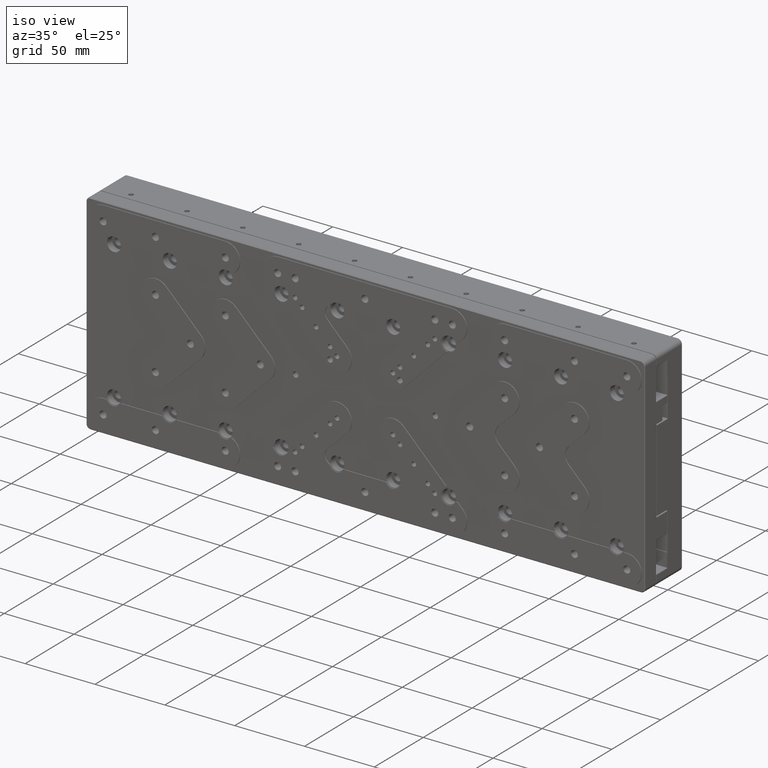
[diagram: clean part render]
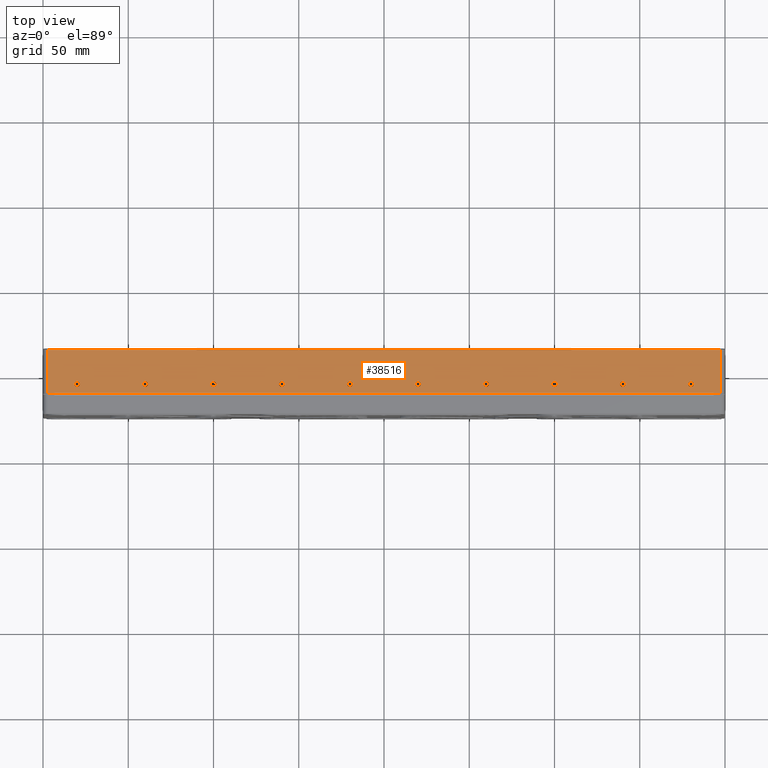
[diagram: tour spotlight — one face highlighted and labeled with its STEP entity id]
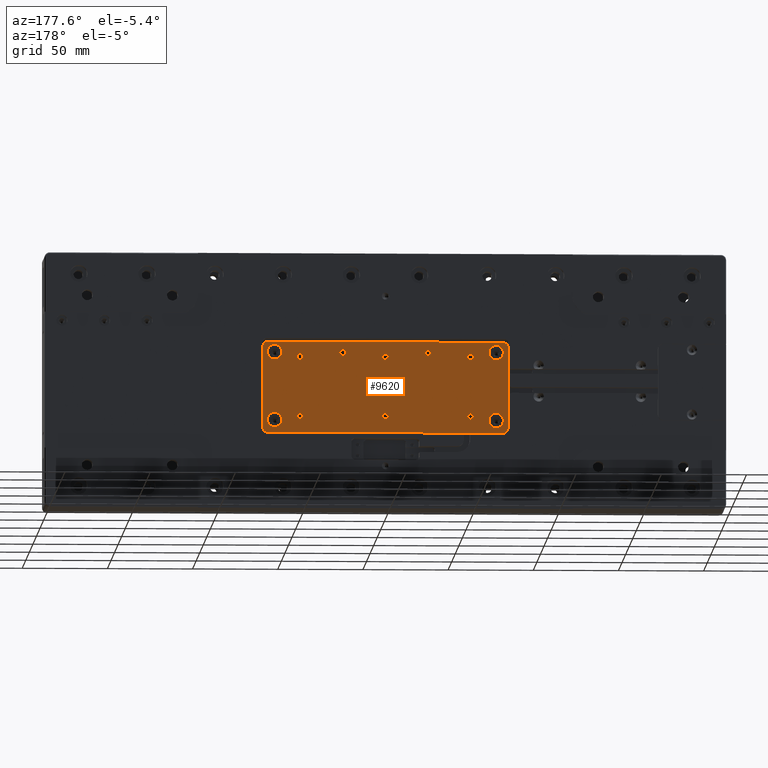
[diagram: tour spotlight — one face highlighted and labeled with its STEP entity id]
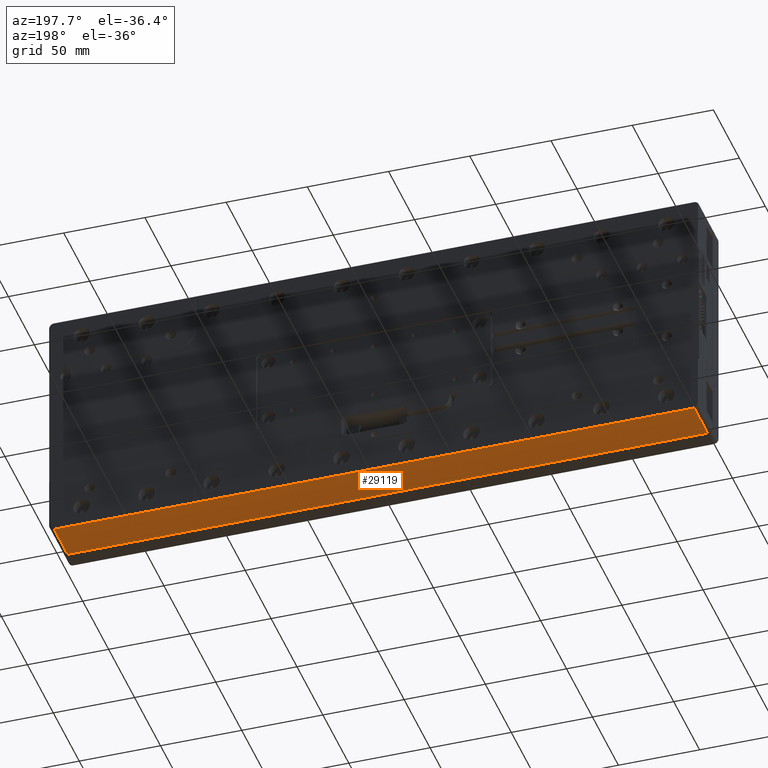
[diagram: tour spotlight — one face highlighted and labeled with its STEP entity id]
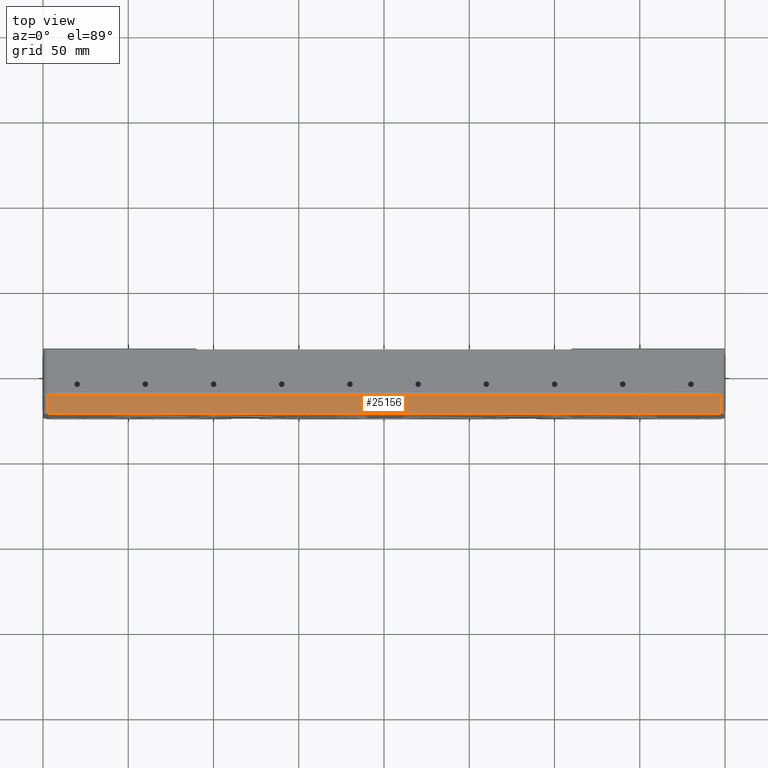
[diagram: tour spotlight — one face highlighted and labeled with its STEP entity id]
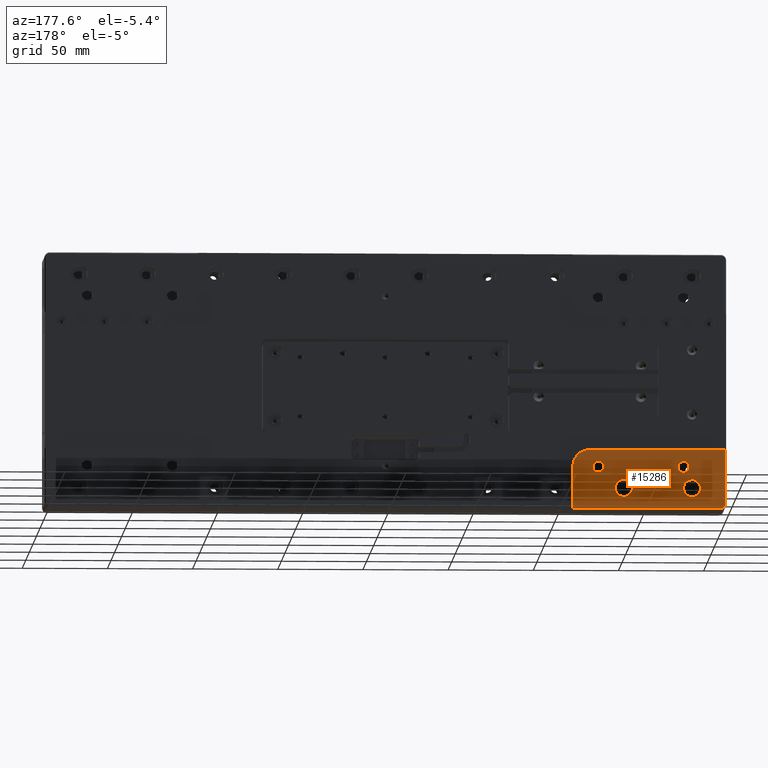
[diagram: tour spotlight — one face highlighted and labeled with its STEP entity id]
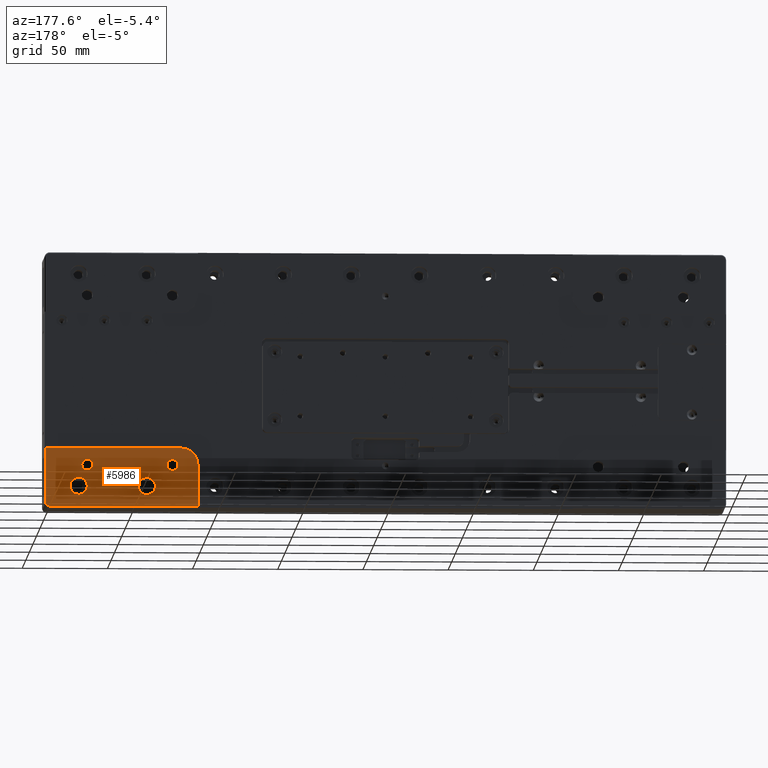
[diagram: tour spotlight — one face highlighted and labeled with its STEP entity id]
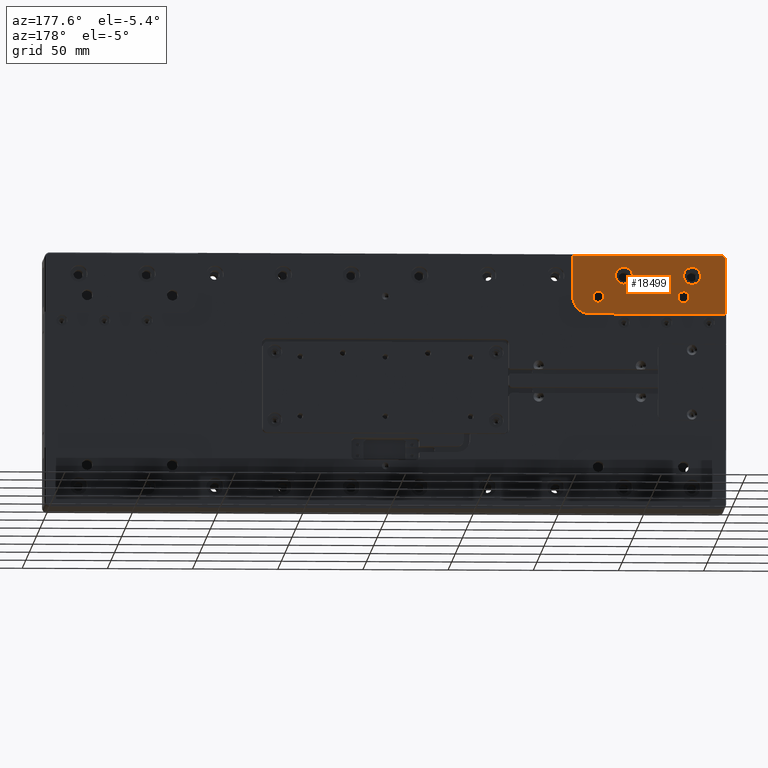
[diagram: tour spotlight — one face highlighted and labeled with its STEP entity id]
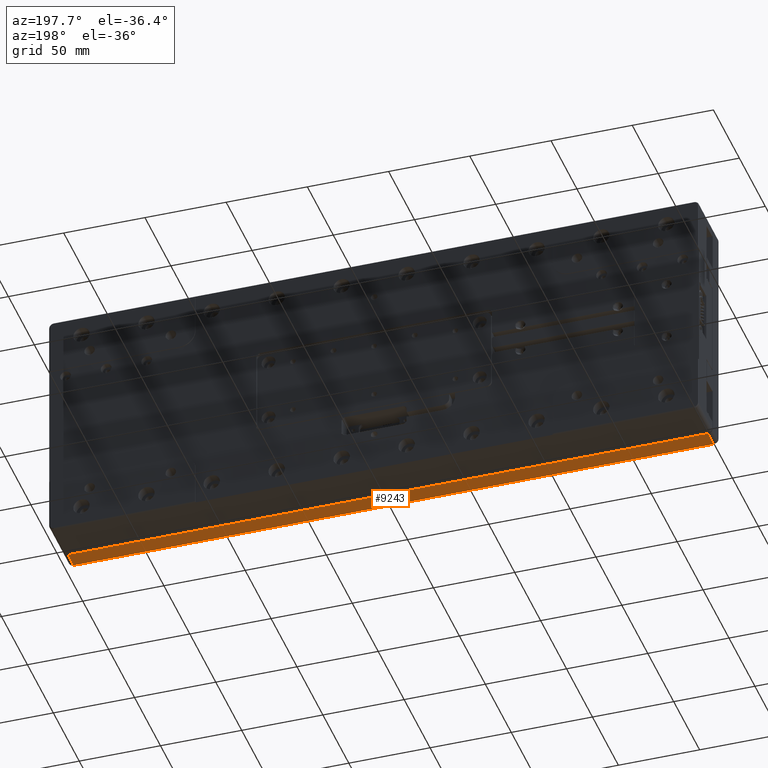
[diagram: tour spotlight — one face highlighted and labeled with its STEP entity id]
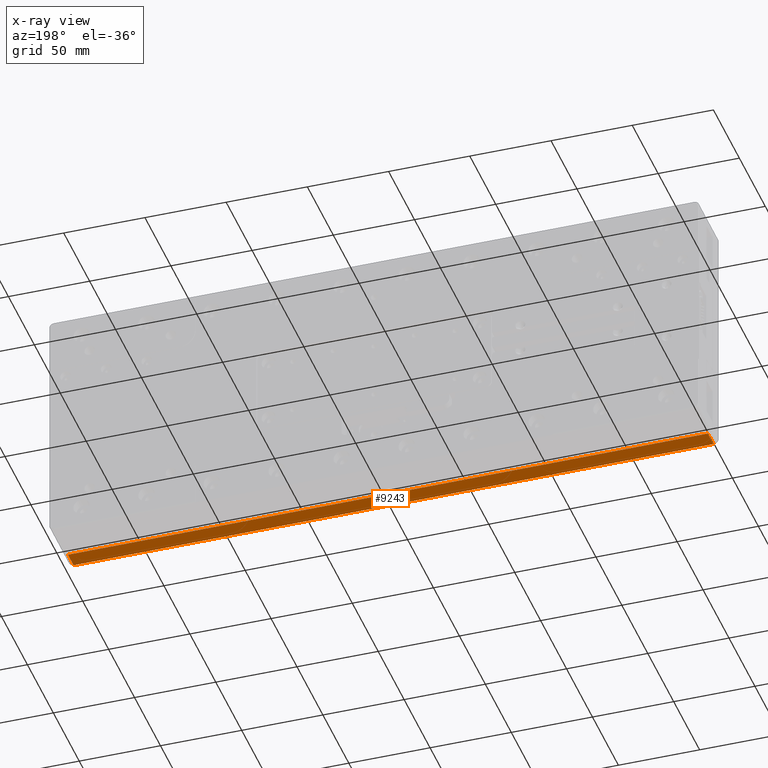
[diagram: x-ray of the same camera — body ghosted, this tour face saturated]
A machine part: a face-by-face anatomy tour. The part has 1323 B-rep faces; the first image is the clean iso view, then the 8 largest visible faces are spotlighted one at a time (largest first), each with its STEP entity span.

Face 1 — top view, entity #38516. In plain terms, the highlighted planar face has unit normal (0, 0, 1).
Definition (entity closure, byte-faithful):
#74 = LINE ( 'NONE', #9385, #27873 ) ;
#139 = VERTEX_POINT ( 'NONE', #24799 ) ;
#190 = VECTOR ( 'NONE', #35965, 1000.000000000000000 ) ;
#1196 = VERTEX_POINT ( 'NONE', #13535 ) ;
#1289 = CARTESIAN_POINT ( 'NONE',  ( -18.35000000000000142, -6.000000000000000000, 75.00000000000000000 ) ) ;
#1970 = CARTESIAN_POINT ( 'NONE',  ( -110.0000000000000000, 14.50000000000000000, 75.00000000000000000 ) ) ;
#2081 = EDGE_LOOP ( 'NONE', ( #12376, #34722, #19757, #23916, #20400, #38355 ) ) ;
#2195 = FACE_BOUND ( 'NONE', #33468, .T. ) ;
#2296 = ORIENTED_EDGE ( 'NONE', *, *, #8261, .T. ) ;
#3207 = DIRECTION ( 'NONE',  ( 1.000000000000000000, 0.000000000000000000, 0.000000000000000000 ) ) ;
#3364 = CIRCLE ( 'NONE', #31737, 1.650000000000012568 ) ;
#3404 = EDGE_LOOP ( 'NONE', ( #31526 ) ) ;
#4595 = VECTOR ( 'NONE', #18468, 1000.000000000000000 ) ;
#4814 = DIRECTION ( 'NONE',  ( -0.000000000000000000, -0.000000000000000000, -1.000000000000000000 ) ) ;
#5235 = AXIS2_PLACEMENT_3D ( 'NONE', #13699, #4814, #29450 ) ;
#5448 = AXIS2_PLACEMENT_3D ( 'NONE', #10194, #25746, #38458 ) ;
#5652 = CARTESIAN_POINT ( 'NONE',  ( 109.9999999999999858, 14.50000000004499867, 75.00000000000000000 ) ) ;
#5825 = CARTESIAN_POINT ( 'NONE',  ( 60.00000000000000000, -6.000000000000000000, 75.00000000000000000 ) ) ;
#6174 = CARTESIAN_POINT ( 'NONE',  ( 0.000000000000000000, 14.50000000000000000, 75.00000000000000000 ) ) ;
#6328 = CARTESIAN_POINT ( 'NONE',  ( 180.0000000000000000, -6.000000000000000000, 75.00000000000000000 ) ) ;
#6955 = DIRECTION ( 'NONE',  ( -1.000000000000000000, -0.000000000000000000, 0.000000000000000000 ) ) ;
#7296 = CARTESIAN_POINT ( 'NONE',  ( 21.64999999999999858, -6.000000000000000000, 75.00000000000000000 ) ) ;
#7526 = EDGE_CURVE ( 'NONE', #30697, #19689, #74, .T. ) ;
#7728 = EDGE_CURVE ( 'NONE', #34837, #34837, #3364, .T. ) ;
#8037 = CIRCLE ( 'NONE', #17679, 1.649999999999998579 ) ;
#8261 = EDGE_CURVE ( 'NONE', #16652, #16652, #11819, .T. ) ;
#8347 = VECTOR ( 'NONE', #38341, 1000.000000000000000 ) ;
#8447 = EDGE_LOOP ( 'NONE', ( #10084 ) ) ;
#8457 = DIRECTION ( 'NONE',  ( 0.000000000000000000, 0.000000000000000000, 1.000000000000000000 ) ) ;
#8464 = EDGE_LOOP ( 'NONE', ( #34678 ) ) ;
#8673 = CIRCLE ( 'NONE', #5448, 1.649999999999998579 ) ;
#9199 = ORIENTED_EDGE ( 'NONE', *, *, #28714, .T. ) ;
#9318 = AXIS2_PLACEMENT_3D ( 'NONE', #39139, #8457, #24393 ) ;
#9385 = CARTESIAN_POINT ( 'NONE',  ( -200.0000000000000000, -11.50000000000000000, 75.00000000000000000 ) ) ;
#9590 = CARTESIAN_POINT ( 'NONE',  ( -197.0000000000000000, 15.00000000000000000, 75.00000000000000000 ) ) ;
#9748 = ORIENTED_EDGE ( 'NONE', *, *, #14572, .T. ) ;
#10084 = ORIENTED_EDGE ( 'NONE', *, *, #38545, .T. ) ;
#10107 = CARTESIAN_POINT ( 'NONE',  ( -100.0000000000000000, -6.000000000000000000, 75.00000000000000000 ) ) ;
#10110 = CARTESIAN_POINT ( 'NONE',  ( -197.0000000000000000, -11.49999999999999822, 75.00000000000000000 ) ) ;
#10194 = CARTESIAN_POINT ( 'NONE',  ( 20.00000000000000000, -6.000000000000000000, 75.00000000000000000 ) ) ;
#10744 = ORIENTED_EDGE ( 'NONE', *, *, #22665, .T. ) ;
#10927 = CARTESIAN_POINT ( 'NONE',  ( -140.0000000000000000, -6.000000000000000000, 75.00000000000000000 ) ) ;
#11225 = EDGE_CURVE ( 'NONE', #29920, #30697, #31224, .T. ) ;
#11476 = FACE_BOUND ( 'NONE', #3404, .T. ) ;
#11772 = DIRECTION ( 'NONE',  ( -0.000000000000000000, -0.000000000000000000, -1.000000000000000000 ) ) ;
#11819 = CIRCLE ( 'NONE', #36320, 1.649999999999998579 ) ;
#12051 = CARTESIAN_POINT ( 'NONE',  ( 197.0000000000000000, -11.49999999999999822, 75.00000000000000000 ) ) ;
#12309 = CIRCLE ( 'NONE', #25868, 1.650000000000012568 ) ;
#12376 = ORIENTED_EDGE ( 'NONE', *, *, #33101, .F. ) ;
#12410 = EDGE_LOOP ( 'NONE', ( #10744 ) ) ;
#12702 = CARTESIAN_POINT ( 'NONE',  ( 100.0000000000000000, -6.000000000000000000, 75.00000000000000000 ) ) ;
#12939 = VERTEX_POINT ( 'NONE', #21630 ) ;
#13145 = CARTESIAN_POINT ( 'NONE',  ( 101.6500000000000057, -6.000000000000000000, 75.00000000000000000 ) ) ;
#13376 = CARTESIAN_POINT ( 'NONE',  ( -98.35000000000000853, -6.000000000000000000, 75.00000000000000000 ) ) ;
#13535 = CARTESIAN_POINT ( 'NONE',  ( 181.6500000000000057, -6.000000000000000000, 75.00000000000000000 ) ) ;
#13699 = CARTESIAN_POINT ( 'NONE',  ( -60.00000000000000000, -6.000000000000000000, 75.00000000000000000 ) ) ;
#13777 = LINE ( 'NONE', #29118, #190 ) ;
#14380 = DIRECTION ( 'NONE',  ( -0.000000000000000000, -0.000000000000000000, -1.000000000000000000 ) ) ;
#14536 = FACE_OUTER_BOUND ( 'NONE', #2081, .T. ) ;
#14572 = EDGE_CURVE ( 'NONE', #20233, #20233, #35366, .T. ) ;
#14752 = VECTOR ( 'NONE', #6955, 1000.000000000000000 ) ;
#15570 = ORIENTED_EDGE ( 'NONE', *, *, #7728, .T. ) ;
#15975 = DIRECTION ( 'NONE',  ( -0.000000000000000000, -0.000000000000000000, -1.000000000000000000 ) ) ;
#16180 = CIRCLE ( 'NONE', #5235, 1.649999999999998579 ) ;
#16243 = LINE ( 'NONE', #34621, #14752 ) ;
#16564 = VERTEX_POINT ( 'NONE', #7296 ) ;
#16652 = VERTEX_POINT ( 'NONE', #1289 ) ;
#16749 = DIRECTION ( 'NONE',  ( -0.000000000000000000, -0.000000000000000000, -1.000000000000000000 ) ) ;
#17331 = CIRCLE ( 'NONE', #21215, 1.649999999999998579 ) ;
#17541 = FACE_BOUND ( 'NONE', #8464, .T. ) ;
#17679 = AXIS2_PLACEMENT_3D ( 'NONE', #5825, #33697, #27029 ) ;
#17740 = FACE_BOUND ( 'NONE', #12410, .T. ) ;
#18011 = EDGE_LOOP ( 'NONE', ( #26842 ) ) ;
#18127 = PLANE ( 'NONE',  #9318 ) ;
#18316 = CARTESIAN_POINT ( 'NONE',  ( 61.64999999999999858, -6.000000000000000000, 75.00000000000000000 ) ) ;
#18468 = DIRECTION ( 'NONE',  ( 1.000000000000000000, 0.000000000000000000, -0.000000000000000000 ) ) ;
#18556 = DIRECTION ( 'NONE',  ( 1.000000000000000000, 0.000000000000000000, 0.000000000000000000 ) ) ;
#19238 = VERTEX_POINT ( 'NONE', #18316 ) ;
#19285 = EDGE_CURVE ( 'NONE', #28699, #28699, #17331, .T. ) ;
#19289 = ORIENTED_EDGE ( 'NONE', *, *, #19285, .T. ) ;
#19504 = EDGE_CURVE ( 'NONE', #19689, #20081, #29054, .T. ) ;
#19689 = VERTEX_POINT ( 'NONE', #12051 ) ;
#19757 = ORIENTED_EDGE ( 'NONE', *, *, #11225, .T. ) ;
#20056 = EDGE_LOOP ( 'NONE', ( #19289 ) ) ;
#20081 = VERTEX_POINT ( 'NONE', #24336 ) ;
#20233 = VERTEX_POINT ( 'NONE', #13376 ) ;
#20400 = ORIENTED_EDGE ( 'NONE', *, *, #19504, .T. ) ;
#20969 = FACE_BOUND ( 'NONE', #20056, .T. ) ;
#21201 = EDGE_LOOP ( 'NONE', ( #2296 ) ) ;
#21215 = AXIS2_PLACEMENT_3D ( 'NONE', #12702, #34319, #3207 ) ;
#21630 = CARTESIAN_POINT ( 'NONE',  ( -58.35000000000000142, -6.000000000000000000, 75.00000000000000000 ) ) ;
#21687 = DIRECTION ( 'NONE',  ( 1.000000000000000000, 0.000000000000000000, -0.000000000000000000 ) ) ;
#21979 = EDGE_CURVE ( 'NONE', #28217, #28217, #25840, .T. ) ;
#22419 = DIRECTION ( 'NONE',  ( 1.000000000000000000, 0.000000000000000000, 0.000000000000000000 ) ) ;
#22469 = AXIS2_PLACEMENT_3D ( 'NONE', #10107, #15975, #22419 ) ;
#22665 = EDGE_CURVE ( 'NONE', #139, #139, #12309, .T. ) ;
#23037 = DIRECTION ( 'NONE',  ( 1.000000000000000000, 0.000000000000000000, 0.000000000000000000 ) ) ;
#23794 = FACE_BOUND ( 'NONE', #30991, .T. ) ;
#23916 = ORIENTED_EDGE ( 'NONE', *, *, #7526, .T. ) ;
#24336 = CARTESIAN_POINT ( 'NONE',  ( 197.0000000033000163, 14.50000000006749978, 74.99999999997750422 ) ) ;
#24393 = DIRECTION ( 'NONE',  ( 1.000000000000000000, 0.000000000000000000, -0.000000000000000000 ) ) ;
#24716 = DIRECTION ( 'NONE',  ( 1.000000000000000000, 0.000000000000000000, 0.000000000000000000 ) ) ;
#24799 = CARTESIAN_POINT ( 'NONE',  ( -178.3499999999999943, -6.000000000000000000, 75.00000000000000000 ) ) ;
#25037 = EDGE_LOOP ( 'NONE', ( #9748 ) ) ;
#25435 = EDGE_CURVE ( 'NONE', #12939, #12939, #16180, .T. ) ;
#25746 = DIRECTION ( 'NONE',  ( -0.000000000000000000, -0.000000000000000000, -1.000000000000000000 ) ) ;
#25840 = CIRCLE ( 'NONE', #27147, 1.650000000000012568 ) ;
#25868 = AXIS2_PLACEMENT_3D ( 'NONE', #35536, #16749, #37951 ) ;
#26034 = CARTESIAN_POINT ( 'NONE',  ( 197.0000000000000000, 15.00000000000000000, 75.00000000000000000 ) ) ;
#26837 = FACE_BOUND ( 'NONE', #21201, .T. ) ;
#26842 = ORIENTED_EDGE ( 'NONE', *, *, #28349, .T. ) ;
#27029 = DIRECTION ( 'NONE',  ( 1.000000000000000000, 0.000000000000000000, 0.000000000000000000 ) ) ;
#27147 = AXIS2_PLACEMENT_3D ( 'NONE', #10927, #14380, #23037 ) ;
#27384 = AXIS2_PLACEMENT_3D ( 'NONE', #6328, #39662, #24716 ) ;
#27873 = VECTOR ( 'NONE', #21687, 1000.000000000000000 ) ;
#28079 = DIRECTION ( 'NONE',  ( -0.000000000000000000, -0.000000000000000000, -1.000000000000000000 ) ) ;
#28217 = VERTEX_POINT ( 'NONE', #33887 ) ;
#28349 = EDGE_CURVE ( 'NONE', #16564, #16564, #8673, .T. ) ;
#28699 = VERTEX_POINT ( 'NONE', #13145 ) ;
#28714 = EDGE_CURVE ( 'NONE', #1196, #1196, #39624, .T. ) ;
#29054 = LINE ( 'NONE', #26034, #8347 ) ;
#29118 = CARTESIAN_POINT ( 'NONE',  ( -200.0000000000000000, 14.50000000000000000, 75.00000000000000000 ) ) ;
#29450 = DIRECTION ( 'NONE',  ( 1.000000000000000000, 0.000000000000000000, 0.000000000000000000 ) ) ;
#29881 = FACE_BOUND ( 'NONE', #8447, .T. ) ;
#29920 = VERTEX_POINT ( 'NONE', #38666 ) ;
#30260 = FACE_BOUND ( 'NONE', #25037, .T. ) ;
#30697 = VERTEX_POINT ( 'NONE', #10110 ) ;
#30753 = VERTEX_POINT ( 'NONE', #5652 ) ;
#30991 = EDGE_LOOP ( 'NONE', ( #9199 ) ) ;
#31224 = LINE ( 'NONE', #9590, #31831 ) ;
#31526 = ORIENTED_EDGE ( 'NONE', *, *, #25435, .T. ) ;
#31737 = AXIS2_PLACEMENT_3D ( 'NONE', #36418, #11772, #39638 ) ;
#31831 = VECTOR ( 'NONE', #34228, 1000.000000000000000 ) ;
#33101 = EDGE_CURVE ( 'NONE', #34090, #30753, #37067, .T. ) ;
#33468 = EDGE_LOOP ( 'NONE', ( #15570 ) ) ;
#33697 = DIRECTION ( 'NONE',  ( -0.000000000000000000, -0.000000000000000000, -1.000000000000000000 ) ) ;
#33887 = CARTESIAN_POINT ( 'NONE',  ( -138.3499999999999943, -6.000000000000000000, 75.00000000000000000 ) ) ;
#34090 = VERTEX_POINT ( 'NONE', #1970 ) ;
#34228 = DIRECTION ( 'NONE',  ( 0.000000000000000000, -1.000000000000000000, -0.000000000000000000 ) ) ;
#34319 = DIRECTION ( 'NONE',  ( -0.000000000000000000, -0.000000000000000000, -1.000000000000000000 ) ) ;
#34621 = CARTESIAN_POINT ( 'NONE',  ( -200.0000000000000000, 14.50000000018000001, 75.00000000000000000 ) ) ;
#34678 = ORIENTED_EDGE ( 'NONE', *, *, #21979, .T. ) ;
#34722 = ORIENTED_EDGE ( 'NONE', *, *, #37927, .T. ) ;
#34790 = EDGE_CURVE ( 'NONE', #20081, #30753, #16243, .T. ) ;
#34837 = VERTEX_POINT ( 'NONE', #38653 ) ;
#35366 = CIRCLE ( 'NONE', #22469, 1.649999999999998579 ) ;
#35536 = CARTESIAN_POINT ( 'NONE',  ( -180.0000000000000000, -6.000000000000000000, 75.00000000000000000 ) ) ;
#35965 = DIRECTION ( 'NONE',  ( -1.000000000000000000, -0.000000000000000000, 0.000000000000000000 ) ) ;
#36119 = FACE_BOUND ( 'NONE', #18011, .T. ) ;
#36320 = AXIS2_PLACEMENT_3D ( 'NONE', #36548, #28079, #18556 ) ;
#36418 = CARTESIAN_POINT ( 'NONE',  ( 140.0000000000000000, -6.000000000000000000, 75.00000000000000000 ) ) ;
#36548 = CARTESIAN_POINT ( 'NONE',  ( -20.00000000000000000, -6.000000000000000000, 75.00000000000000000 ) ) ;
#37067 = LINE ( 'NONE', #6174, #4595 ) ;
#37927 = EDGE_CURVE ( 'NONE', #34090, #29920, #13777, .T. ) ;
#37951 = DIRECTION ( 'NONE',  ( 1.000000000000000000, 0.000000000000000000, 0.000000000000000000 ) ) ;
#38341 = DIRECTION ( 'NONE',  ( -0.000000000000000000, 1.000000000000000000, 0.000000000000000000 ) ) ;
#38355 = ORIENTED_EDGE ( 'NONE', *, *, #34790, .T. ) ;
#38458 = DIRECTION ( 'NONE',  ( 1.000000000000000000, 0.000000000000000000, 0.000000000000000000 ) ) ;
#38516 = ADVANCED_FACE ( 'NONE', ( #23794, #17740, #17541, #30260, #11476, #26837, #36119, #29881, #20969, #2195, #14536 ), #18127, .T. ) ;
#38545 = EDGE_CURVE ( 'NONE', #19238, #19238, #8037, .T. ) ;
#38653 = CARTESIAN_POINT ( 'NONE',  ( 141.6500000000000341, -6.000000000000000000, 75.00000000000000000 ) ) ;
#38666 = CARTESIAN_POINT ( 'NONE',  ( -197.0000000000000000, 14.49999999999999822, 75.00000000000001421 ) ) ;
#39139 = CARTESIAN_POINT ( 'NONE',  ( -200.0000000000000000, 15.00000000000000000, 75.00000000000000000 ) ) ;
#39624 = CIRCLE ( 'NONE', #27384, 1.650000000000012568 ) ;
#39638 = DIRECTION ( 'NONE',  ( 1.000000000000000000, 0.000000000000000000, 0.000000000000000000 ) ) ;
#39662 = DIRECTION ( 'NONE',  ( -0.000000000000000000, -0.000000000000000000, -1.000000000000000000 ) ) ;

Face 2 — auxiliary view, entity #9620. In plain terms, the highlighted planar face has unit normal (0, 1, 0).
Definition (entity closure, byte-faithful):
#357 = EDGE_CURVE ( 'NONE', #34944, #35881, #27047, .T. ) ;
#365 = CARTESIAN_POINT ( 'NONE',  ( -65.00000000000000000, 14.50000000000000178, 21.25000000000000000 ) ) ;
#531 = CARTESIAN_POINT ( 'NONE',  ( -69.00000000000000000, 14.50000000000000000, 20.00000000000000000 ) ) ;
#723 = VERTEX_POINT ( 'NONE', #6819 ) ;
#861 = EDGE_CURVE ( 'NONE', #3781, #3781, #13954, .T. ) ;
#1002 = EDGE_CURVE ( 'NONE', #26986, #1064, #15424, .T. ) ;
#1064 = VERTEX_POINT ( 'NONE', #16012 ) ;
#1282 = EDGE_LOOP ( 'NONE', ( #2691, #21600, #31945, #5541, #32563, #31057, #14295, #31106 ) ) ;
#2156 = ORIENTED_EDGE ( 'NONE', *, *, #34538, .T. ) ;
#2171 = CARTESIAN_POINT ( 'NONE',  ( 25.00000000000000000, 14.50000000000000000, 14.82000000000000206 ) ) ;
#2344 = CARTESIAN_POINT ( 'NONE',  ( 65.00000000000000000, 14.50000000000000178, -18.75000000000000000 ) ) ;
#2544 = CIRCLE ( 'NONE', #19945, 1.650000000000000355 ) ;
#2691 = ORIENTED_EDGE ( 'NONE', *, *, #1002, .T. ) ;
#2707 = DIRECTION ( 'NONE',  ( -1.000000000000000000, -0.000000000000000000, 0.000000000000000000 ) ) ;
#2726 = DIRECTION ( 'NONE',  ( -0.000000000000000000, -1.000000000000000000, -0.000000000000000000 ) ) ;
#2766 = CARTESIAN_POINT ( 'NONE',  ( -50.00000000000000000, 14.50000000000000000, 12.59999999999999964 ) ) ;
#2907 = DIRECTION ( 'NONE',  ( -0.000000000000000000, 0.000000000000000000, -1.000000000000000000 ) ) ;
#2997 = EDGE_CURVE ( 'NONE', #33262, #33262, #23769, .T. ) ;
#3021 = FACE_BOUND ( 'NONE', #33444, .T. ) ;
#3128 = CIRCLE ( 'NONE', #14732, 1.649999999999998579 ) ;
#3781 = VERTEX_POINT ( 'NONE', #35885 ) ;
#3919 = CARTESIAN_POINT ( 'NONE',  ( -69.00000000000000000, 14.50000000000000000, 23.00000000000000000 ) ) ;
#3945 = ORIENTED_EDGE ( 'NONE', *, *, #22151, .T. ) ;
#4288 = VERTEX_POINT ( 'NONE', #4493 ) ;
#4493 = CARTESIAN_POINT ( 'NONE',  ( 69.00000000000000000, 14.50000000000000000, -30.50000000000000000 ) ) ;
#4898 = EDGE_CURVE ( 'NONE', #18900, #18900, #2544, .T. ) ;
#4954 = CARTESIAN_POINT ( 'NONE',  ( -50.00000000000000000, 14.50000000000000000, -20.75000000000000000 ) ) ;
#5042 = DIRECTION ( 'NONE',  ( 0.000000000000000000, 0.000000000000000000, -1.000000000000000000 ) ) ;
#5138 = ORIENTED_EDGE ( 'NONE', *, *, #37819, .T. ) ;
#5177 = DIRECTION ( 'NONE',  ( 0.000000000000000000, 0.000000000000000000, -1.000000000000000000 ) ) ;
#5320 = AXIS2_PLACEMENT_3D ( 'NONE', #33748, #30907, #33939 ) ;
#5416 = CARTESIAN_POINT ( 'NONE',  ( 0.000000000000000000, 14.50000000000000000, -22.39999999999999858 ) ) ;
#5541 = ORIENTED_EDGE ( 'NONE', *, *, #36787, .T. ) ;
#5590 = CARTESIAN_POINT ( 'NONE',  ( 50.00000000000000000, 14.50000000000000000, -20.75000000000000000 ) ) ;
#5974 = DIRECTION ( 'NONE',  ( 0.000000000000000000, 0.000000000000000000, 1.000000000000000000 ) ) ;
#6638 = DIRECTION ( 'NONE',  ( 0.000000000000000000, 1.000000000000000000, 0.000000000000000000 ) ) ;
#6677 = FACE_BOUND ( 'NONE', #9255, .T. ) ;
#6683 = CARTESIAN_POINT ( 'NONE',  ( 69.00000000000000000, 14.50000000000000000, -27.50000000000000000 ) ) ;
#6819 = CARTESIAN_POINT ( 'NONE',  ( 0.000000000000000000, 14.50000000000000000, 12.59999999999999964 ) ) ;
#6820 = LINE ( 'NONE', #16090, #29214 ) ;
#6824 = ORIENTED_EDGE ( 'NONE', *, *, #15593, .T. ) ;
#6983 = EDGE_LOOP ( 'NONE', ( #3945 ) ) ;
#7170 = ORIENTED_EDGE ( 'NONE', *, *, #36867, .T. ) ;
#7274 = AXIS2_PLACEMENT_3D ( 'NONE', #32238, #13265, #35462 ) ;
#7334 = ORIENTED_EDGE ( 'NONE', *, *, #12295, .T. ) ;
#7834 = VERTEX_POINT ( 'NONE', #30561 ) ;
#8586 = AXIS2_PLACEMENT_3D ( 'NONE', #15310, #27628, #31071 ) ;
#8604 = DIRECTION ( 'NONE',  ( 0.000000000000000000, 0.000000000000000000, -1.000000000000000000 ) ) ;
#8742 = VERTEX_POINT ( 'NONE', #3919 ) ;
#9255 = EDGE_LOOP ( 'NONE', ( #27540 ) ) ;
#9587 = CIRCLE ( 'NONE', #22461, 4.250000000000000000 ) ;
#9620 = ADVANCED_FACE ( 'NONE', ( #3021, #6677, #15950, #28271, #15166, #27474, #12913, #39777, #19953, #10494, #13311, #35131, #16538 ), #16356, .T. ) ;
#9809 = AXIS2_PLACEMENT_3D ( 'NONE', #23040, #31957, #22442 ) ;
#10034 = VERTEX_POINT ( 'NONE', #31266 ) ;
#10494 = FACE_BOUND ( 'NONE', #13974, .T. ) ;
#10620 = VECTOR ( 'NONE', #35939, 1000.000000000000000 ) ;
#10869 = EDGE_CURVE ( 'NONE', #8742, #31276, #6820, .T. ) ;
#10958 = EDGE_CURVE ( 'NONE', #31276, #26986, #35671, .T. ) ;
#11020 = CIRCLE ( 'NONE', #12279, 4.250000000000000000 ) ;
#11122 = AXIS2_PLACEMENT_3D ( 'NONE', #5590, #20325, #5177 ) ;
#11206 = CIRCLE ( 'NONE', #34409, 1.650000000000000355 ) ;
#11293 = CARTESIAN_POINT ( 'NONE',  ( -72.00000000000001421, 14.50000000000000000, 20.00000000000000000 ) ) ;
#11597 = AXIS2_PLACEMENT_3D ( 'NONE', #34024, #24541, #15073 ) ;
#11650 = VERTEX_POINT ( 'NONE', #2766 ) ;
#11800 = DIRECTION ( 'NONE',  ( 0.000000000000000000, 0.000000000000000000, 1.000000000000000000 ) ) ;
#12279 = AXIS2_PLACEMENT_3D ( 'NONE', #36378, #14573, #31272 ) ;
#12295 = EDGE_CURVE ( 'NONE', #12981, #12981, #28540, .T. ) ;
#12871 = DIRECTION ( 'NONE',  ( 0.000000000000000000, 0.000000000000000000, 1.000000000000000000 ) ) ;
#12913 = FACE_BOUND ( 'NONE', #32203, .T. ) ;
#12981 = VERTEX_POINT ( 'NONE', #21476 ) ;
#13062 = CIRCLE ( 'NONE', #33053, 2.999999999999999112 ) ;
#13175 = CARTESIAN_POINT ( 'NONE',  ( -50.00000000000000000, 14.50000000000000000, 14.25000000000000000 ) ) ;
#13238 = CARTESIAN_POINT ( 'NONE',  ( 50.00000000000000000, 14.50000000000000000, 12.59999999999999964 ) ) ;
#13265 = DIRECTION ( 'NONE',  ( 0.000000000000000000, 1.000000000000000000, 0.000000000000000000 ) ) ;
#13311 = FACE_BOUND ( 'NONE', #30036, .T. ) ;
#13954 = CIRCLE ( 'NONE', #36521, 4.250000000000000000 ) ;
#13974 = EDGE_LOOP ( 'NONE', ( #6824 ) ) ;
#14295 = ORIENTED_EDGE ( 'NONE', *, *, #10869, .T. ) ;
#14393 = AXIS2_PLACEMENT_3D ( 'NONE', #25833, #16737, #19759 ) ;
#14573 = DIRECTION ( 'NONE',  ( -0.000000000000000000, -1.000000000000000000, -0.000000000000000000 ) ) ;
#14732 = AXIS2_PLACEMENT_3D ( 'NONE', #4954, #39480, #8604 ) ;
#14973 = CIRCLE ( 'NONE', #5320, 2.999999999999999112 ) ;
#15052 = CARTESIAN_POINT ( 'NONE',  ( 0.000000000000000000, 14.50000000000000000, -30.50000000000000000 ) ) ;
#15073 = DIRECTION ( 'NONE',  ( 0.000000000000000000, 0.000000000000000000, -1.000000000000000000 ) ) ;
#15166 = FACE_BOUND ( 'NONE', #34686, .T. ) ;
#15310 = CARTESIAN_POINT ( 'NONE',  ( 0.000000000000000000, 14.50000000000000000, -20.75000000000000000 ) ) ;
#15424 = LINE ( 'NONE', #30594, #17169 ) ;
#15593 = EDGE_CURVE ( 'NONE', #38812, #38812, #3128, .T. ) ;
#15749 = VERTEX_POINT ( 'NONE', #365 ) ;
#15808 = DIRECTION ( 'NONE',  ( 0.000000000000000000, -1.000000000000000000, 0.000000000000000000 ) ) ;
#15950 = FACE_BOUND ( 'NONE', #6983, .T. ) ;
#15992 = DIRECTION ( 'NONE',  ( 0.000000000000000000, 0.000000000000000000, -1.000000000000000000 ) ) ;
#16012 = CARTESIAN_POINT ( 'NONE',  ( 72.00000000000001421, 14.50000000000000000, -27.50000000000000000 ) ) ;
#16090 = CARTESIAN_POINT ( 'NONE',  ( 0.000000000000000000, 14.50000000000000000, 23.00000000000000000 ) ) ;
#16356 = PLANE ( 'NONE',  #14393 ) ;
#16538 = FACE_OUTER_BOUND ( 'NONE', #1282, .T. ) ;
#16545 = CARTESIAN_POINT ( 'NONE',  ( -25.00000000000000000, 14.50000000000000000, 16.57000000000000028 ) ) ;
#16737 = DIRECTION ( 'NONE',  ( 0.000000000000000000, 1.000000000000000000, 0.000000000000000000 ) ) ;
#17169 = VECTOR ( 'NONE', #2907, 1000.000000000000000 ) ;
#17307 = VERTEX_POINT ( 'NONE', #2171 ) ;
#18900 = VERTEX_POINT ( 'NONE', #13238 ) ;
#19759 = DIRECTION ( 'NONE',  ( 0.000000000000000000, -0.000000000000000000, 1.000000000000000000 ) ) ;
#19945 = AXIS2_PLACEMENT_3D ( 'NONE', #29491, #36349, #5042 ) ;
#19953 = FACE_BOUND ( 'NONE', #28340, .T. ) ;
#20325 = DIRECTION ( 'NONE',  ( 0.000000000000000000, -1.000000000000000000, 0.000000000000000000 ) ) ;
#20528 = VERTEX_POINT ( 'NONE', #39114 ) ;
#20781 = CIRCLE ( 'NONE', #33710, 1.749999999999999778 ) ;
#21361 = EDGE_CURVE ( 'NONE', #723, #723, #29014, .T. ) ;
#21476 = CARTESIAN_POINT ( 'NONE',  ( 50.00000000000000000, 14.50000000000000000, -22.39999999999999858 ) ) ;
#21600 = ORIENTED_EDGE ( 'NONE', *, *, #36835, .T. ) ;
#21786 = ORIENTED_EDGE ( 'NONE', *, *, #2997, .T. ) ;
#22151 = EDGE_CURVE ( 'NONE', #10034, #10034, #11020, .T. ) ;
#22442 = DIRECTION ( 'NONE',  ( 0.000000000000000000, 0.000000000000000000, -1.000000000000000000 ) ) ;
#22461 = AXIS2_PLACEMENT_3D ( 'NONE', #30400, #2726, #5974 ) ;
#22544 = CARTESIAN_POINT ( 'NONE',  ( 72.00000000000001421, 14.50000000000000000, 20.00000000000000000 ) ) ;
#22997 = DIRECTION ( 'NONE',  ( 0.000000000000000000, -1.000000000000000000, 0.000000000000000000 ) ) ;
#23040 = CARTESIAN_POINT ( 'NONE',  ( 25.00000000000000000, 14.50000000000000000, 16.57000000000000028 ) ) ;
#23769 = CIRCLE ( 'NONE', #31510, 4.250000000000000000 ) ;
#24541 = DIRECTION ( 'NONE',  ( 0.000000000000000000, -1.000000000000000000, 0.000000000000000000 ) ) ;
#24852 = DIRECTION ( 'NONE',  ( 0.000000000000000000, 0.000000000000000000, 1.000000000000000000 ) ) ;
#24865 = EDGE_CURVE ( 'NONE', #4288, #7834, #30984, .T. ) ;
#25813 = VECTOR ( 'NONE', #2707, 1000.000000000000000 ) ;
#25833 = CARTESIAN_POINT ( 'NONE',  ( 0.000000000000000000, 14.50000000000000000, 0.000000000000000000 ) ) ;
#26986 = VERTEX_POINT ( 'NONE', #22544 ) ;
#27047 = LINE ( 'NONE', #33122, #10620 ) ;
#27144 = CARTESIAN_POINT ( 'NONE',  ( -65.00000000000000000, 14.50000000000000178, -23.00000000000000000 ) ) ;
#27474 = FACE_BOUND ( 'NONE', #35802, .T. ) ;
#27540 = ORIENTED_EDGE ( 'NONE', *, *, #36454, .T. ) ;
#27628 = DIRECTION ( 'NONE',  ( 0.000000000000000000, -1.000000000000000000, 0.000000000000000000 ) ) ;
#28150 = CARTESIAN_POINT ( 'NONE',  ( 65.00000000000000000, 14.50000000000000178, -23.00000000000000000 ) ) ;
#28271 = FACE_BOUND ( 'NONE', #29043, .T. ) ;
#28340 = EDGE_LOOP ( 'NONE', ( #39660 ) ) ;
#28540 = CIRCLE ( 'NONE', #11122, 1.649999999999998579 ) ;
#29014 = CIRCLE ( 'NONE', #11597, 1.650000000000000355 ) ;
#29043 = EDGE_LOOP ( 'NONE', ( #21786 ) ) ;
#29214 = VECTOR ( 'NONE', #33888, 1000.000000000000000 ) ;
#29491 = CARTESIAN_POINT ( 'NONE',  ( 50.00000000000000000, 14.50000000000000000, 14.25000000000000000 ) ) ;
#29855 = VERTEX_POINT ( 'NONE', #5416 ) ;
#29857 = AXIS2_PLACEMENT_3D ( 'NONE', #531, #6638, #12871 ) ;
#30036 = EDGE_LOOP ( 'NONE', ( #34918 ) ) ;
#30400 = CARTESIAN_POINT ( 'NONE',  ( -65.00000000000000000, 14.50000000000000178, 17.00000000000000000 ) ) ;
#30450 = CARTESIAN_POINT ( 'NONE',  ( 68.99999999156000285, 14.50000000000000000, 23.00000000000000000 ) ) ;
#30561 = CARTESIAN_POINT ( 'NONE',  ( -69.00000000000000000, 14.50000000000000000, -30.50000000000000000 ) ) ;
#30594 = CARTESIAN_POINT ( 'NONE',  ( 72.00000000000001421, 14.50000000000000000, 0.000000000000000000 ) ) ;
#30711 = DIRECTION ( 'NONE',  ( 0.000000000000000000, 1.000000000000000000, 0.000000000000000000 ) ) ;
#30907 = DIRECTION ( 'NONE',  ( 0.000000000000000000, 1.000000000000000000, 0.000000000000000000 ) ) ;
#30984 = LINE ( 'NONE', #15052, #25813 ) ;
#31057 = ORIENTED_EDGE ( 'NONE', *, *, #37283, .T. ) ;
#31071 = DIRECTION ( 'NONE',  ( 0.000000000000000000, 0.000000000000000000, -1.000000000000000000 ) ) ;
#31106 = ORIENTED_EDGE ( 'NONE', *, *, #10958, .T. ) ;
#31266 = CARTESIAN_POINT ( 'NONE',  ( 65.00000000000000000, 14.50000000000000178, 21.25000000000000000 ) ) ;
#31272 = DIRECTION ( 'NONE',  ( 0.000000000000000000, 0.000000000000000000, 1.000000000000000000 ) ) ;
#31276 = VERTEX_POINT ( 'NONE', #30450 ) ;
#31510 = AXIS2_PLACEMENT_3D ( 'NONE', #28150, #31573, #34002 ) ;
#31573 = DIRECTION ( 'NONE',  ( -0.000000000000000000, -1.000000000000000000, -0.000000000000000000 ) ) ;
#31945 = ORIENTED_EDGE ( 'NONE', *, *, #24865, .T. ) ;
#31957 = DIRECTION ( 'NONE',  ( 0.000000000000000000, -1.000000000000000000, 0.000000000000000000 ) ) ;
#32066 = ORIENTED_EDGE ( 'NONE', *, *, #21361, .T. ) ;
#32203 = EDGE_LOOP ( 'NONE', ( #5138 ) ) ;
#32238 = CARTESIAN_POINT ( 'NONE',  ( 69.00000000000000000, 14.50000000000000000, 20.00000000000000000 ) ) ;
#32563 = ORIENTED_EDGE ( 'NONE', *, *, #357, .T. ) ;
#33053 = AXIS2_PLACEMENT_3D ( 'NONE', #6683, #30711, #24852 ) ;
#33122 = CARTESIAN_POINT ( 'NONE',  ( -72.00000000000001421, 14.50000000000000000, 0.000000000000000000 ) ) ;
#33262 = VERTEX_POINT ( 'NONE', #2344 ) ;
#33444 = EDGE_LOOP ( 'NONE', ( #7170 ) ) ;
#33656 = CIRCLE ( 'NONE', #9809, 1.749999999999999778 ) ;
#33710 = AXIS2_PLACEMENT_3D ( 'NONE', #16545, #22997, #35322 ) ;
#33739 = CIRCLE ( 'NONE', #29857, 2.999999999999999112 ) ;
#33748 = CARTESIAN_POINT ( 'NONE',  ( -69.00000000000000000, 14.50000000000000000, -27.50000000000000000 ) ) ;
#33888 = DIRECTION ( 'NONE',  ( 1.000000000000000000, 0.000000000000000000, -0.000000000000000000 ) ) ;
#33939 = DIRECTION ( 'NONE',  ( 0.000000000000000000, 0.000000000000000000, 1.000000000000000000 ) ) ;
#34002 = DIRECTION ( 'NONE',  ( 0.000000000000000000, 0.000000000000000000, 1.000000000000000000 ) ) ;
#34024 = CARTESIAN_POINT ( 'NONE',  ( 0.000000000000000000, 14.50000000000000000, 14.25000000000000000 ) ) ;
#34185 = ORIENTED_EDGE ( 'NONE', *, *, #861, .T. ) ;
#34409 = AXIS2_PLACEMENT_3D ( 'NONE', #13175, #15808, #15992 ) ;
#34538 = EDGE_CURVE ( 'NONE', #15749, #15749, #9587, .T. ) ;
#34686 = EDGE_LOOP ( 'NONE', ( #2156 ) ) ;
#34918 = ORIENTED_EDGE ( 'NONE', *, *, #37278, .T. ) ;
#34944 = VERTEX_POINT ( 'NONE', #39439 ) ;
#35131 = FACE_BOUND ( 'NONE', #36041, .T. ) ;
#35322 = DIRECTION ( 'NONE',  ( 0.000000000000000000, 0.000000000000000000, -1.000000000000000000 ) ) ;
#35462 = DIRECTION ( 'NONE',  ( 0.000000000000000000, 0.000000000000000000, 1.000000000000000000 ) ) ;
#35671 = CIRCLE ( 'NONE', #7274, 2.999999999999999112 ) ;
#35802 = EDGE_LOOP ( 'NONE', ( #34185 ) ) ;
#35881 = VERTEX_POINT ( 'NONE', #11293 ) ;
#35885 = CARTESIAN_POINT ( 'NONE',  ( -65.00000000000000000, 14.50000000000000178, -18.75000000000000000 ) ) ;
#35939 = DIRECTION ( 'NONE',  ( 0.000000000000000000, -0.000000000000000000, 1.000000000000000000 ) ) ;
#36041 = EDGE_LOOP ( 'NONE', ( #7334 ) ) ;
#36349 = DIRECTION ( 'NONE',  ( 0.000000000000000000, -1.000000000000000000, 0.000000000000000000 ) ) ;
#36378 = CARTESIAN_POINT ( 'NONE',  ( 65.00000000000000000, 14.50000000000000178, 17.00000000000000000 ) ) ;
#36454 = EDGE_CURVE ( 'NONE', #17307, #17307, #33656, .T. ) ;
#36521 = AXIS2_PLACEMENT_3D ( 'NONE', #27144, #39461, #11800 ) ;
#36576 = CARTESIAN_POINT ( 'NONE',  ( -50.00000000000000000, 14.50000000000000000, -22.39999999999999858 ) ) ;
#36787 = EDGE_CURVE ( 'NONE', #7834, #34944, #14973, .T. ) ;
#36835 = EDGE_CURVE ( 'NONE', #1064, #4288, #13062, .T. ) ;
#36867 = EDGE_CURVE ( 'NONE', #20528, #20528, #20781, .T. ) ;
#37278 = EDGE_CURVE ( 'NONE', #29855, #29855, #38890, .T. ) ;
#37283 = EDGE_CURVE ( 'NONE', #35881, #8742, #33739, .T. ) ;
#37457 = EDGE_LOOP ( 'NONE', ( #32066 ) ) ;
#37819 = EDGE_CURVE ( 'NONE', #11650, #11650, #11206, .T. ) ;
#38812 = VERTEX_POINT ( 'NONE', #36576 ) ;
#38890 = CIRCLE ( 'NONE', #8586, 1.649999999999998579 ) ;
#39114 = CARTESIAN_POINT ( 'NONE',  ( -25.00000000000000000, 14.50000000000000000, 14.82000000000000206 ) ) ;
#39439 = CARTESIAN_POINT ( 'NONE',  ( -72.00000000000001421, 14.50000000000000000, -27.50000000000000000 ) ) ;
#39461 = DIRECTION ( 'NONE',  ( -0.000000000000000000, -1.000000000000000000, -0.000000000000000000 ) ) ;
#39480 = DIRECTION ( 'NONE',  ( 0.000000000000000000, -1.000000000000000000, 0.000000000000000000 ) ) ;
#39660 = ORIENTED_EDGE ( 'NONE', *, *, #4898, .T. ) ;
#39777 = FACE_BOUND ( 'NONE', #37457, .T. ) ;

Face 3 — auxiliary view, entity #29119. In plain terms, the highlighted planar face has unit normal (0, 0, -1).
Definition (entity closure, byte-faithful):
#528 = VERTEX_POINT ( 'NONE', #13419 ) ;
#928 = CARTESIAN_POINT ( 'NONE',  ( -109.9999999999999858, 14.50000000004499867, -75.00000000000000000 ) ) ;
#951 = PLANE ( 'NONE',  #20964 ) ;
#2436 = CARTESIAN_POINT ( 'NONE',  ( -200.0000000000000000, 14.50000000018000001, -75.00000000000000000 ) ) ;
#3660 = CARTESIAN_POINT ( 'NONE',  ( -197.0000000033000447, 14.50000000011250023, -74.99999999997750422 ) ) ;
#3755 = CARTESIAN_POINT ( 'NONE',  ( -200.0000000000000000, 14.50000000000000000, -75.00000000000000000 ) ) ;
#4164 = DIRECTION ( 'NONE',  ( 1.000000000000000000, -0.000000000000000000, 0.000000000000000000 ) ) ;
#4469 = DIRECTION ( 'NONE',  ( 0.000000000000000000, 1.000000000000000000, 0.000000000000000000 ) ) ;
#5161 = VERTEX_POINT ( 'NONE', #23923 ) ;
#7314 = VECTOR ( 'NONE', #15355, 1000.000000000000000 ) ;
#8307 = VERTEX_POINT ( 'NONE', #928 ) ;
#10027 = LINE ( 'NONE', #3755, #22636 ) ;
#10054 = CARTESIAN_POINT ( 'NONE',  ( -200.0000000000000000, 0.000000000000000000, -75.00000000000000000 ) ) ;
#12878 = DIRECTION ( 'NONE',  ( -1.000000000000000000, 0.000000000000000000, -0.000000000000000000 ) ) ;
#13419 = CARTESIAN_POINT ( 'NONE',  ( 109.9999999999999858, 14.50000000000000000, -75.00000000000000000 ) ) ;
#13728 = CARTESIAN_POINT ( 'NONE',  ( 197.0000001653000083, 0.000000000000000000, -75.00000000000000000 ) ) ;
#15175 = LINE ( 'NONE', #33161, #7314 ) ;
#15355 = DIRECTION ( 'NONE',  ( -1.000000000000000000, -0.000000000000000000, 0.000000000000000000 ) ) ;
#15735 = DIRECTION ( 'NONE',  ( 0.000000000000000000, 0.000000000000000000, -1.000000000000000000 ) ) ;
#17642 = EDGE_CURVE ( 'NONE', #5161, #19569, #36370, .T. ) ;
#17793 = LINE ( 'NONE', #2436, #31038 ) ;
#19569 = VERTEX_POINT ( 'NONE', #36312 ) ;
#20193 = ORIENTED_EDGE ( 'NONE', *, *, #36538, .T. ) ;
#20964 = AXIS2_PLACEMENT_3D ( 'NONE', #10054, #15735, #12878 ) ;
#21852 = VERTEX_POINT ( 'NONE', #34170 ) ;
#22410 = EDGE_CURVE ( 'NONE', #31759, #8307, #17793, .T. ) ;
#22636 = VECTOR ( 'NONE', #4164, 1000.000000000000000 ) ;
#22992 = LINE ( 'NONE', #13728, #24145 ) ;
#23225 = DIRECTION ( 'NONE',  ( -1.000000000000000000, 0.000000000000000000, -0.000000000000000000 ) ) ;
#23923 = CARTESIAN_POINT ( 'NONE',  ( 197.0000000826500184, -11.49999999999999822, -75.00000000000000000 ) ) ;
#24145 = VECTOR ( 'NONE', #35319, 1000.000000000000000 ) ;
#24350 = ORIENTED_EDGE ( 'NONE', *, *, #27500, .F. ) ;
#24990 = VECTOR ( 'NONE', #23225, 1000.000000000000000 ) ;
#25598 = ORIENTED_EDGE ( 'NONE', *, *, #22410, .T. ) ;
#26487 = LINE ( 'NONE', #32145, #34311 ) ;
#26687 = CARTESIAN_POINT ( 'NONE',  ( -200.0000000000000000, -11.50000000000000000, -75.00000000000000000 ) ) ;
#27500 = EDGE_CURVE ( 'NONE', #528, #8307, #15175, .T. ) ;
#28288 = DIRECTION ( 'NONE',  ( 1.000000000000000000, -0.000000000000000000, 0.000000000000000000 ) ) ;
#28440 = FACE_OUTER_BOUND ( 'NONE', #33966, .T. ) ;
#29119 = ADVANCED_FACE ( 'NONE', ( #28440 ), #951, .T. ) ;
#31038 = VECTOR ( 'NONE', #28288, 1000.000000000000000 ) ;
#31440 = EDGE_CURVE ( 'NONE', #528, #21852, #10027, .T. ) ;
#31759 = VERTEX_POINT ( 'NONE', #3660 ) ;
#32145 = CARTESIAN_POINT ( 'NONE',  ( -197.0000000000000000, 0.000000000000000000, -75.00000000000000000 ) ) ;
#33161 = CARTESIAN_POINT ( 'NONE',  ( 0.000000000000000000, 14.50000000000000000, -75.00000000000000000 ) ) ;
#33966 = EDGE_LOOP ( 'NONE', ( #20193, #25598, #24350, #35740, #34874, #34506 ) ) ;
#34170 = CARTESIAN_POINT ( 'NONE',  ( 197.0000000918000183, 14.50000001008000439, -74.99999999495999248 ) ) ;
#34311 = VECTOR ( 'NONE', #4469, 1000.000000000000000 ) ;
#34506 = ORIENTED_EDGE ( 'NONE', *, *, #17642, .T. ) ;
#34874 = ORIENTED_EDGE ( 'NONE', *, *, #38481, .T. ) ;
#35319 = DIRECTION ( 'NONE',  ( -0.000000000000000000, -1.000000000000000000, -0.000000000000000000 ) ) ;
#35740 = ORIENTED_EDGE ( 'NONE', *, *, #31440, .T. ) ;
#36312 = CARTESIAN_POINT ( 'NONE',  ( -197.0000000000000000, -11.49999999999999822, -75.00000000000000000 ) ) ;
#36370 = LINE ( 'NONE', #26687, #24990 ) ;
#36538 = EDGE_CURVE ( 'NONE', #19569, #31759, #26487, .T. ) ;
#38481 = EDGE_CURVE ( 'NONE', #21852, #5161, #22992, .T. ) ;

Face 4 — top view, entity #25156. In plain terms, the highlighted planar face has unit normal (0, 0, 1).
Definition (entity closure, byte-faithful):
#2042 = ORIENTED_EDGE ( 'NONE', *, *, #2958, .F. ) ;
#2208 = VERTEX_POINT ( 'NONE', #34196 ) ;
#2958 = EDGE_CURVE ( 'NONE', #24704, #17816, #31196, .T. ) ;
#3541 = EDGE_CURVE ( 'NONE', #17816, #2208, #18306, .T. ) ;
#6156 = DIRECTION ( 'NONE',  ( -1.000000000000000000, -0.000000000000000000, -0.000000000000000000 ) ) ;
#6363 = ORIENTED_EDGE ( 'NONE', *, *, #25378, .F. ) ;
#9682 = CARTESIAN_POINT ( 'NONE',  ( -196.9999999996001634, -23.00000000009911716, 74.99999999997000089 ) ) ;
#9722 = VECTOR ( 'NONE', #29045, 1000.000000000000000 ) ;
#9723 = VECTOR ( 'NONE', #29009, 1000.000000000000000 ) ;
#10019 = CARTESIAN_POINT ( 'NONE',  ( 196.9999999995500275, -23.00000000013999468, 74.99999999994817301 ) ) ;
#10957 = PLANE ( 'NONE',  #27782 ) ;
#11554 = CARTESIAN_POINT ( 'NONE',  ( -200.0000000000000000, -12.00000000000000000, 75.00000000000000000 ) ) ;
#11853 = DIRECTION ( 'NONE',  ( -0.000000000000000000, 1.000000000000000000, 0.000000000000000000 ) ) ;
#16518 = CARTESIAN_POINT ( 'NONE',  ( 197.0000000000000000, 30.13460000000000250, 75.00000000000001421 ) ) ;
#16736 = CARTESIAN_POINT ( 'NONE',  ( 197.0000000000000000, -12.00000000000000000, 75.00000000000001421 ) ) ;
#17816 = VERTEX_POINT ( 'NONE', #9682 ) ;
#18306 = LINE ( 'NONE', #29846, #25036 ) ;
#23125 = LINE ( 'NONE', #35457, #9723 ) ;
#24704 = VERTEX_POINT ( 'NONE', #10019 ) ;
#25036 = VECTOR ( 'NONE', #11853, 1000.000000000000000 ) ;
#25063 = VECTOR ( 'NONE', #6156, 1000.000000000000000 ) ;
#25156 = ADVANCED_FACE ( 'NONE', ( #39029 ), #10957, .T. ) ;
#25378 = EDGE_CURVE ( 'NONE', #26648, #24704, #38514, .T. ) ;
#26648 = VERTEX_POINT ( 'NONE', #16736 ) ;
#26791 = ORIENTED_EDGE ( 'NONE', *, *, #3541, .F. ) ;
#27782 = AXIS2_PLACEMENT_3D ( 'NONE', #11554, #39956, #35606 ) ;
#29009 = DIRECTION ( 'NONE',  ( -1.000000000000000000, -0.000000000000000000, 0.000000000000000000 ) ) ;
#29045 = DIRECTION ( 'NONE',  ( 0.000000000000000000, -1.000000000000000000, 0.000000000000000000 ) ) ;
#29846 = CARTESIAN_POINT ( 'NONE',  ( -197.0000000000000000, -12.00000000000000000, 75.00000000000000000 ) ) ;
#31196 = LINE ( 'NONE', #37638, #25063 ) ;
#32704 = EDGE_CURVE ( 'NONE', #26648, #2208, #23125, .T. ) ;
#34196 = CARTESIAN_POINT ( 'NONE',  ( -197.0000000000000000, -12.00000000000000178, 75.00000000000000000 ) ) ;
#35457 = CARTESIAN_POINT ( 'NONE',  ( -200.0000000000000000, -12.00000000000000000, 75.00000000000000000 ) ) ;
#35606 = DIRECTION ( 'NONE',  ( 1.000000000000000000, 0.000000000000000000, -0.000000000000000000 ) ) ;
#37638 = CARTESIAN_POINT ( 'NONE',  ( -3.552713678801000121E-14, -23.00000000005999468, 74.99999999994000177 ) ) ;
#38514 = LINE ( 'NONE', #16518, #9722 ) ;
#38894 = EDGE_LOOP ( 'NONE', ( #2042, #6363, #39639, #26791 ) ) ;
#39029 = FACE_OUTER_BOUND ( 'NONE', #38894, .T. ) ;
#39639 = ORIENTED_EDGE ( 'NONE', *, *, #32704, .T. ) ;
#39956 = DIRECTION ( 'NONE',  ( 0.000000000000000000, 0.000000000000000000, 1.000000000000000000 ) ) ;

Face 5 — auxiliary view, entity #15286. In plain terms, the highlighted planar face has unit normal (0, 1, 0).
Definition (entity closure, byte-faithful):
#294 = EDGE_LOOP ( 'NONE', ( #34617 ) ) ;
#323 = CARTESIAN_POINT ( 'NONE',  ( -200.0000000000000000, 15.00000000000000000, -75.00000000000000000 ) ) ;
#453 = ORIENTED_EDGE ( 'NONE', *, *, #29911, .T. ) ;
#596 = DIRECTION ( 'NONE',  ( 0.000000000000000000, 0.000000000000000000, 1.000000000000000000 ) ) ;
#800 = AXIS2_PLACEMENT_3D ( 'NONE', #4054, #31137, #596 ) ;
#1042 = VERTEX_POINT ( 'NONE', #10752 ) ;
#2477 = DIRECTION ( 'NONE',  ( -0.000000000000000000, -0.000000000000000000, -1.000000000000000000 ) ) ;
#2732 = ORIENTED_EDGE ( 'NONE', *, *, #14253, .T. ) ;
#2902 = VERTEX_POINT ( 'NONE', #27360 ) ;
#2935 = VERTEX_POINT ( 'NONE', #24911 ) ;
#3234 = VERTEX_POINT ( 'NONE', #36574 ) ;
#3435 = EDGE_LOOP ( 'NONE', ( #10975 ) ) ;
#4054 = CARTESIAN_POINT ( 'NONE',  ( -120.0000000000000000, 15.00000000000000000, -50.00000000000000000 ) ) ;
#4220 = DIRECTION ( 'NONE',  ( 0.000000000000000000, 0.000000000000000000, 1.000000000000000000 ) ) ;
#4397 = AXIS2_PLACEMENT_3D ( 'NONE', #22456, #25908, #29142 ) ;
#4762 = LINE ( 'NONE', #32431, #34779 ) ;
#5316 = CIRCLE ( 'NONE', #30449, 4.999999999999997335 ) ;
#6204 = FACE_BOUND ( 'NONE', #34007, .T. ) ;
#6805 = FACE_OUTER_BOUND ( 'NONE', #18533, .T. ) ;
#7176 = CARTESIAN_POINT ( 'NONE',  ( -180.0000000000000000, 15.00000000000000000, -57.50000000000000000 ) ) ;
#7563 = VERTEX_POINT ( 'NONE', #7176 ) ;
#7571 = EDGE_CURVE ( 'NONE', #7563, #7563, #21429, .T. ) ;
#7906 = CARTESIAN_POINT ( 'NONE',  ( -199.5000000000000284, 15.00000000000001421, -56.00000000000000000 ) ) ;
#9310 = DIRECTION ( 'NONE',  ( -1.000000000000000000, -0.000000000000000000, 0.000000000000000000 ) ) ;
#9426 = FACE_BOUND ( 'NONE', #3435, .T. ) ;
#10628 = EDGE_CURVE ( 'NONE', #2902, #2902, #5316, .T. ) ;
#10752 = CARTESIAN_POINT ( 'NONE',  ( -125.0000000000000000, 15.00000000000000000, -53.20000000000000284 ) ) ;
#10975 = ORIENTED_EDGE ( 'NONE', *, *, #7571, .T. ) ;
#11930 = VERTEX_POINT ( 'NONE', #34497 ) ;
#12399 = VECTOR ( 'NONE', #9310, 1000.000000000000000 ) ;
#12576 = ORIENTED_EDGE ( 'NONE', *, *, #10628, .T. ) ;
#12736 = AXIS2_PLACEMENT_3D ( 'NONE', #17772, #35776, #32548 ) ;
#13771 = EDGE_CURVE ( 'NONE', #34996, #34996, #22188, .T. ) ;
#13850 = DIRECTION ( 'NONE',  ( 0.000000000000000000, 0.000000000000000000, -1.000000000000000000 ) ) ;
#13988 = CARTESIAN_POINT ( 'NONE',  ( -175.0000000000000284, 15.00000000000000000, -53.20000000000000284 ) ) ;
#14253 = EDGE_CURVE ( 'NONE', #1042, #1042, #28917, .T. ) ;
#15108 = AXIS2_PLACEMENT_3D ( 'NONE', #19686, #29195, #13850 ) ;
#15286 = ADVANCED_FACE ( 'NONE', ( #6204, #9426, #31252, #25163, #6805 ), #37481, .T. ) ;
#15485 = DIRECTION ( 'NONE',  ( 0.000000000000000000, -0.000000000000000000, 1.000000000000000000 ) ) ;
#15845 = DIRECTION ( 'NONE',  ( 0.000000000000000000, 0.000000000000000000, 1.000000000000000000 ) ) ;
#16584 = ORIENTED_EDGE ( 'NONE', *, *, #23756, .F. ) ;
#17080 = VERTEX_POINT ( 'NONE', #35409 ) ;
#17665 = EDGE_CURVE ( 'NONE', #17080, #20334, #38992, .T. ) ;
#17667 = EDGE_CURVE ( 'NONE', #29704, #20334, #26929, .T. ) ;
#17772 = CARTESIAN_POINT ( 'NONE',  ( -197.0000000000000000, 14.99999999993223376, -72.00000000000001421 ) ) ;
#18221 = CIRCLE ( 'NONE', #800, 10.00000000000000178 ) ;
#18533 = EDGE_LOOP ( 'NONE', ( #29157, #35140, #23196, #32222, #453, #16584 ) ) ;
#19571 = DIRECTION ( 'NONE',  ( -0.000000000000000000, -1.000000000000000000, -0.000000000000000000 ) ) ;
#19686 = CARTESIAN_POINT ( 'NONE',  ( -175.0000000000000284, 15.00000000000000000, -50.00000000000000000 ) ) ;
#20334 = VERTEX_POINT ( 'NONE', #22103 ) ;
#21055 = LINE ( 'NONE', #39830, #29042 ) ;
#21429 = CIRCLE ( 'NONE', #28542, 4.999999999999997335 ) ;
#21501 = DIRECTION ( 'NONE',  ( -0.000000000000000000, -1.000000000000000000, -0.000000000000000000 ) ) ;
#21721 = EDGE_CURVE ( 'NONE', #3234, #11930, #21055, .T. ) ;
#22103 = CARTESIAN_POINT ( 'NONE',  ( -199.4999999999716920, 15.00000000000534328, -72.00000000000000000 ) ) ;
#22188 = CIRCLE ( 'NONE', #15108, 3.200000000000001510 ) ;
#22330 = DIRECTION ( 'NONE',  ( 0.000000000000000000, 1.000000000000000000, 0.000000000000000000 ) ) ;
#22387 = VECTOR ( 'NONE', #33147, 1000.000000000000000 ) ;
#22456 = CARTESIAN_POINT ( 'NONE',  ( -125.0000000000000000, 15.00000000000000000, -50.00000000000000000 ) ) ;
#22511 = CARTESIAN_POINT ( 'NONE',  ( -197.0000000033000163, 14.99999999993223376, -74.50000000003387868 ) ) ;
#22799 = CARTESIAN_POINT ( 'NONE',  ( -140.0000000000000000, 15.00000000000000000, -62.50000000000000000 ) ) ;
#23196 = ORIENTED_EDGE ( 'NONE', *, *, #17667, .T. ) ;
#23756 = EDGE_CURVE ( 'NONE', #3234, #2935, #18221, .T. ) ;
#23844 = EDGE_LOOP ( 'NONE', ( #2732 ) ) ;
#24911 = CARTESIAN_POINT ( 'NONE',  ( -120.0000000000000000, 15.00000000000000000, -40.00000000000000000 ) ) ;
#25163 = FACE_BOUND ( 'NONE', #23844, .T. ) ;
#25908 = DIRECTION ( 'NONE',  ( 0.000000000000000000, -1.000000000000000000, 0.000000000000000000 ) ) ;
#26929 = CIRCLE ( 'NONE', #12736, 2.500000000054569682 ) ;
#27360 = CARTESIAN_POINT ( 'NONE',  ( -140.0000000000000000, 15.00000000000000000, -57.50000000000000000 ) ) ;
#28542 = AXIS2_PLACEMENT_3D ( 'NONE', #31207, #21501, #15845 ) ;
#28917 = CIRCLE ( 'NONE', #4397, 3.200000000000001510 ) ;
#29042 = VECTOR ( 'NONE', #2477, 1000.000000000000000 ) ;
#29142 = DIRECTION ( 'NONE',  ( 0.000000000000000000, 0.000000000000000000, -1.000000000000000000 ) ) ;
#29157 = ORIENTED_EDGE ( 'NONE', *, *, #21721, .T. ) ;
#29195 = DIRECTION ( 'NONE',  ( 0.000000000000000000, -1.000000000000000000, 0.000000000000000000 ) ) ;
#29704 = VERTEX_POINT ( 'NONE', #22511 ) ;
#29911 = EDGE_CURVE ( 'NONE', #17080, #2935, #4762, .T. ) ;
#30449 = AXIS2_PLACEMENT_3D ( 'NONE', #22799, #19571, #4220 ) ;
#31137 = DIRECTION ( 'NONE',  ( -0.000000000000000000, -1.000000000000000000, -0.000000000000000000 ) ) ;
#31207 = CARTESIAN_POINT ( 'NONE',  ( -180.0000000000000000, 15.00000000000000000, -62.50000000000000000 ) ) ;
#31252 = FACE_BOUND ( 'NONE', #294, .T. ) ;
#32222 = ORIENTED_EDGE ( 'NONE', *, *, #17665, .F. ) ;
#32431 = CARTESIAN_POINT ( 'NONE',  ( -110.0000000000000000, 15.00000000000000000, -40.00000000000000000 ) ) ;
#32548 = DIRECTION ( 'NONE',  ( 0.000000000000000000, 0.000000000000000000, -1.000000000000000000 ) ) ;
#33147 = DIRECTION ( 'NONE',  ( -0.000000000000000000, -0.000000000000000000, -1.000000000000000000 ) ) ;
#34007 = EDGE_LOOP ( 'NONE', ( #12576 ) ) ;
#34497 = CARTESIAN_POINT ( 'NONE',  ( -109.9999999999999858, 15.00000000006666312, -74.49999999993333688 ) ) ;
#34617 = ORIENTED_EDGE ( 'NONE', *, *, #13771, .T. ) ;
#34703 = AXIS2_PLACEMENT_3D ( 'NONE', #323, #22330, #15485 ) ;
#34779 = VECTOR ( 'NONE', #38467, 1000.000000000000000 ) ;
#34996 = VERTEX_POINT ( 'NONE', #13988 ) ;
#35140 = ORIENTED_EDGE ( 'NONE', *, *, #36842, .T. ) ;
#35409 = CARTESIAN_POINT ( 'NONE',  ( -199.5000000000000000, 15.00000000000000533, -40.00000000000000000 ) ) ;
#35776 = DIRECTION ( 'NONE',  ( -0.000000000000000000, 1.000000000000000000, -0.000000000000000000 ) ) ;
#36574 = CARTESIAN_POINT ( 'NONE',  ( -110.0000000000000000, 15.00000000000000000, -50.00000000000000000 ) ) ;
#36842 = EDGE_CURVE ( 'NONE', #11930, #29704, #39784, .T. ) ;
#36973 = CARTESIAN_POINT ( 'NONE',  ( -200.0000000000000000, 15.00000000000000000, -74.50000000000000000 ) ) ;
#37481 = PLANE ( 'NONE',  #34703 ) ;
#38467 = DIRECTION ( 'NONE',  ( 1.000000000000000000, -0.000000000000000000, 0.000000000000000000 ) ) ;
#38992 = LINE ( 'NONE', #7906, #22387 ) ;
#39784 = LINE ( 'NONE', #36973, #12399 ) ;
#39830 = CARTESIAN_POINT ( 'NONE',  ( -110.0000000000000000, 15.00000000000000000, -75.00000000000000000 ) ) ;

Face 6 — auxiliary view, entity #5986. In plain terms, the highlighted planar face has unit normal (0, 1, 0).
Definition (entity closure, byte-faithful):
#186 = DIRECTION ( 'NONE',  ( 0.000000000000000000, -1.000000000000000000, 0.000000000000000000 ) ) ;
#713 = AXIS2_PLACEMENT_3D ( 'NONE', #8876, #17577, #11507 ) ;
#778 = VECTOR ( 'NONE', #24352, 1000.000000000000000 ) ;
#1233 = CARTESIAN_POINT ( 'NONE',  ( 125.0000000000000000, 15.00000000000000000, -50.00000000000000000 ) ) ;
#1500 = LINE ( 'NONE', #23099, #37064 ) ;
#1663 = VERTEX_POINT ( 'NONE', #33910 ) ;
#2028 = EDGE_CURVE ( 'NONE', #6905, #31887, #4810, .T. ) ;
#2312 = PLANE ( 'NONE',  #23236 ) ;
#2624 = EDGE_LOOP ( 'NONE', ( #3423 ) ) ;
#3423 = ORIENTED_EDGE ( 'NONE', *, *, #20517, .T. ) ;
#3592 = DIRECTION ( 'NONE',  ( -0.000000000000000000, -1.000000000000000000, -0.000000000000000000 ) ) ;
#3959 = CIRCLE ( 'NONE', #713, 4.999999999999997335 ) ;
#4099 = CARTESIAN_POINT ( 'NONE',  ( 125.0000000000000000, 15.00000000000000000, -53.20000000000000284 ) ) ;
#4333 = EDGE_CURVE ( 'NONE', #24357, #24357, #17936, .T. ) ;
#4810 = LINE ( 'NONE', #10663, #22407 ) ;
#4886 = EDGE_LOOP ( 'NONE', ( #32570 ) ) ;
#5011 = ORIENTED_EDGE ( 'NONE', *, *, #31978, .T. ) ;
#5169 = CIRCLE ( 'NONE', #21934, 3.200000000000001510 ) ;
#5359 = FACE_OUTER_BOUND ( 'NONE', #15357, .T. ) ;
#5986 = ADVANCED_FACE ( 'NONE', ( #23712, #39258, #20677, #8372, #5359 ), #2312, .T. ) ;
#6548 = EDGE_CURVE ( 'NONE', #16325, #1663, #37484, .T. ) ;
#6615 = CIRCLE ( 'NONE', #39497, 10.00000000000000178 ) ;
#6625 = LINE ( 'NONE', #21563, #29202 ) ;
#6905 = VERTEX_POINT ( 'NONE', #29861 ) ;
#7304 = CARTESIAN_POINT ( 'NONE',  ( 110.0000000000000000, 15.00000000000000000, -50.00000000000000000 ) ) ;
#7719 = VERTEX_POINT ( 'NONE', #4099 ) ;
#7766 = DIRECTION ( 'NONE',  ( -0.000000000000000000, 0.000000000000000000, -1.000000000000000000 ) ) ;
#8372 = FACE_BOUND ( 'NONE', #2624, .T. ) ;
#8876 = CARTESIAN_POINT ( 'NONE',  ( 180.0000000000000000, 15.00000000000000000, -62.50000000000000000 ) ) ;
#9602 = CARTESIAN_POINT ( 'NONE',  ( 199.5000000000000000, 15.00000000000000000, -40.00000000000000000 ) ) ;
#9680 = CARTESIAN_POINT ( 'NONE',  ( 175.0000000000000284, 15.00000000000000000, -50.00000000000000000 ) ) ;
#9857 = CARTESIAN_POINT ( 'NONE',  ( 120.0000000000000000, 15.00000000000000000, -50.00000000000000000 ) ) ;
#10663 = CARTESIAN_POINT ( 'NONE',  ( 110.0000000000000000, 15.00000000000000000, -40.00000000000000000 ) ) ;
#11507 = DIRECTION ( 'NONE',  ( 0.000000000000000000, 0.000000000000000000, 1.000000000000000000 ) ) ;
#12240 = EDGE_CURVE ( 'NONE', #18927, #28280, #30221, .T. ) ;
#12381 = EDGE_LOOP ( 'NONE', ( #5011 ) ) ;
#13001 = EDGE_CURVE ( 'NONE', #7719, #7719, #21491, .T. ) ;
#14233 = ORIENTED_EDGE ( 'NONE', *, *, #12240, .T. ) ;
#14832 = DIRECTION ( 'NONE',  ( 0.000000000000000000, 1.000000000000000000, 0.000000000000000000 ) ) ;
#14874 = CARTESIAN_POINT ( 'NONE',  ( 200.0000000000000000, 15.00000000000000000, -40.00000000000000000 ) ) ;
#15357 = EDGE_LOOP ( 'NONE', ( #32355, #33891, #20547, #32606, #14233, #31552 ) ) ;
#15536 = DIRECTION ( 'NONE',  ( -0.000000000000000000, 1.000000000000000000, -0.000000000000000000 ) ) ;
#15714 = AXIS2_PLACEMENT_3D ( 'NONE', #1233, #28330, #16597 ) ;
#16325 = VERTEX_POINT ( 'NONE', #33091 ) ;
#16597 = DIRECTION ( 'NONE',  ( 0.000000000000000000, 0.000000000000000000, -1.000000000000000000 ) ) ;
#17210 = DIRECTION ( 'NONE',  ( 0.000000000000000000, 0.000000000000000000, 1.000000000000000000 ) ) ;
#17577 = DIRECTION ( 'NONE',  ( -0.000000000000000000, -1.000000000000000000, -0.000000000000000000 ) ) ;
#17806 = CARTESIAN_POINT ( 'NONE',  ( 140.0000000000000000, 15.00000000000000000, -62.50000000000000000 ) ) ;
#17936 = CIRCLE ( 'NONE', #26999, 4.999999999999997335 ) ;
#18927 = VERTEX_POINT ( 'NONE', #33960 ) ;
#19595 = VERTEX_POINT ( 'NONE', #31518 ) ;
#20141 = DIRECTION ( 'NONE',  ( -0.000000000000000000, -0.000000000000000000, 1.000000000000000000 ) ) ;
#20517 = EDGE_CURVE ( 'NONE', #19595, #19595, #5169, .T. ) ;
#20547 = ORIENTED_EDGE ( 'NONE', *, *, #2028, .T. ) ;
#20677 = FACE_BOUND ( 'NONE', #26245, .T. ) ;
#20898 = CARTESIAN_POINT ( 'NONE',  ( -200.0000000000000000, 15.00000000000000000, -75.00000000000000000 ) ) ;
#21491 = CIRCLE ( 'NONE', #15714, 3.200000000000001510 ) ;
#21563 = CARTESIAN_POINT ( 'NONE',  ( 153.5000000000000000, 15.00000000000000000, -74.50000000000000000 ) ) ;
#21934 = AXIS2_PLACEMENT_3D ( 'NONE', #9680, #186, #36744 ) ;
#22407 = VECTOR ( 'NONE', #20141, 1000.000000000000000 ) ;
#22872 = ORIENTED_EDGE ( 'NONE', *, *, #13001, .T. ) ;
#23099 = CARTESIAN_POINT ( 'NONE',  ( 199.5000000000000000, 15.00000000000000000, -75.00000000000000000 ) ) ;
#23236 = AXIS2_PLACEMENT_3D ( 'NONE', #20898, #14832, #33231 ) ;
#23712 = FACE_BOUND ( 'NONE', #12381, .T. ) ;
#24352 = DIRECTION ( 'NONE',  ( 1.000000000000000000, -0.000000000000000000, 0.000000000000000000 ) ) ;
#24357 = VERTEX_POINT ( 'NONE', #33451 ) ;
#24416 = CARTESIAN_POINT ( 'NONE',  ( 197.0000000000000000, 15.00000001129819083, -72.00000000000001421 ) ) ;
#26245 = EDGE_LOOP ( 'NONE', ( #22872 ) ) ;
#26828 = EDGE_CURVE ( 'NONE', #6905, #1663, #6625, .T. ) ;
#26999 = AXIS2_PLACEMENT_3D ( 'NONE', #17806, #36401, #17210 ) ;
#27828 = DIRECTION ( 'NONE',  ( 1.000000000000000000, -0.000000000000000000, 0.000000000000000000 ) ) ;
#28232 = DIRECTION ( 'NONE',  ( 0.000000000000000000, 0.000000000000000000, 1.000000000000000000 ) ) ;
#28280 = VERTEX_POINT ( 'NONE', #9602 ) ;
#28330 = DIRECTION ( 'NONE',  ( 0.000000000000000000, -1.000000000000000000, 0.000000000000000000 ) ) ;
#28461 = EDGE_CURVE ( 'NONE', #28280, #16325, #1500, .T. ) ;
#29202 = VECTOR ( 'NONE', #27828, 1000.000000000000000 ) ;
#29861 = CARTESIAN_POINT ( 'NONE',  ( 109.9999999999999858, 15.00000000000000000, -74.50000000000000000 ) ) ;
#30221 = LINE ( 'NONE', #14874, #778 ) ;
#31518 = CARTESIAN_POINT ( 'NONE',  ( 175.0000000000000284, 15.00000000000000000, -53.20000000000000284 ) ) ;
#31552 = ORIENTED_EDGE ( 'NONE', *, *, #28461, .T. ) ;
#31682 = CARTESIAN_POINT ( 'NONE',  ( 180.0000000000000000, 15.00000000000000000, -57.50000000000000000 ) ) ;
#31887 = VERTEX_POINT ( 'NONE', #7304 ) ;
#31978 = EDGE_CURVE ( 'NONE', #34517, #34517, #3959, .T. ) ;
#32355 = ORIENTED_EDGE ( 'NONE', *, *, #6548, .T. ) ;
#32570 = ORIENTED_EDGE ( 'NONE', *, *, #4333, .T. ) ;
#32606 = ORIENTED_EDGE ( 'NONE', *, *, #37164, .F. ) ;
#33091 = CARTESIAN_POINT ( 'NONE',  ( 199.4999999943509295, 15.00000000564909541, -72.00000000000001421 ) ) ;
#33231 = DIRECTION ( 'NONE',  ( 0.000000000000000000, -0.000000000000000000, 1.000000000000000000 ) ) ;
#33451 = CARTESIAN_POINT ( 'NONE',  ( 140.0000000000000000, 15.00000000000000000, -57.50000000000000000 ) ) ;
#33891 = ORIENTED_EDGE ( 'NONE', *, *, #26828, .F. ) ;
#33910 = CARTESIAN_POINT ( 'NONE',  ( 197.0000000918000183, 15.00000000564909541, -74.50000000000000000 ) ) ;
#33960 = CARTESIAN_POINT ( 'NONE',  ( 120.0000000000000000, 15.00000000000000000, -40.00000000000000000 ) ) ;
#34517 = VERTEX_POINT ( 'NONE', #31682 ) ;
#36401 = DIRECTION ( 'NONE',  ( -0.000000000000000000, -1.000000000000000000, -0.000000000000000000 ) ) ;
#36539 = DIRECTION ( 'NONE',  ( 0.000000000000000000, 0.000000000000000000, -1.000000000000000000 ) ) ;
#36744 = DIRECTION ( 'NONE',  ( 0.000000000000000000, 0.000000000000000000, -1.000000000000000000 ) ) ;
#36832 = AXIS2_PLACEMENT_3D ( 'NONE', #24416, #15536, #36539 ) ;
#37064 = VECTOR ( 'NONE', #7766, 1000.000000000000000 ) ;
#37164 = EDGE_CURVE ( 'NONE', #18927, #31887, #6615, .T. ) ;
#37484 = CIRCLE ( 'NONE', #36832, 2.499999988859136213 ) ;
#39258 = FACE_BOUND ( 'NONE', #4886, .T. ) ;
#39497 = AXIS2_PLACEMENT_3D ( 'NONE', #9857, #3592, #28232 ) ;

Face 7 — auxiliary view, entity #18499. In plain terms, the highlighted planar face has unit normal (0, 1, 0).
Definition (entity closure, byte-faithful):
#452 = DIRECTION ( 'NONE',  ( 1.000000000000000000, 0.000000000000000000, 0.000000000000000000 ) ) ;
#843 = VERTEX_POINT ( 'NONE', #14823 ) ;
#1000 = DIRECTION ( 'NONE',  ( 0.000000000000000000, -1.000000000000000000, 0.000000000000000000 ) ) ;
#2410 = DIRECTION ( 'NONE',  ( 0.000000000000000000, 0.000000000000000000, 1.000000000000000000 ) ) ;
#3103 = FACE_OUTER_BOUND ( 'NONE', #9681, .T. ) ;
#3679 = CIRCLE ( 'NONE', #26262, 2.499999999995006217 ) ;
#4165 = CARTESIAN_POINT ( 'NONE',  ( -180.0000000000000000, 15.00000000000000000, 62.50000000000000000 ) ) ;
#4933 = EDGE_LOOP ( 'NONE', ( #17144 ) ) ;
#5262 = CARTESIAN_POINT ( 'NONE',  ( -140.0000000000000000, 15.00000000000000000, 62.50000000000000000 ) ) ;
#6169 = CARTESIAN_POINT ( 'NONE',  ( -197.0000000000000000, 14.99999999999317879, 74.50000000000680700 ) ) ;
#6345 = CARTESIAN_POINT ( 'NONE',  ( -197.0000000000000000, 14.99999999998635758, 72.00000000000001421 ) ) ;
#7396 = DIRECTION ( 'NONE',  ( -0.000000000000000000, -1.000000000000000000, -0.000000000000000000 ) ) ;
#7670 = CARTESIAN_POINT ( 'NONE',  ( -125.0000000000000000, 15.00000000000000000, 50.00000000000000000 ) ) ;
#7879 = VECTOR ( 'NONE', #12967, 1000.000000000000000 ) ;
#8227 = ORIENTED_EDGE ( 'NONE', *, *, #31031, .F. ) ;
#8507 = DIRECTION ( 'NONE',  ( 0.000000000000000000, -1.000000000000000000, 0.000000000000000000 ) ) ;
#9181 = FACE_BOUND ( 'NONE', #17800, .T. ) ;
#9681 = EDGE_LOOP ( 'NONE', ( #20777, #8227, #22514, #13575, #37826, #22760 ) ) ;
#9772 = DIRECTION ( 'NONE',  ( 0.000000000000000000, -0.000000000000000000, 1.000000000000000000 ) ) ;
#10519 = DIRECTION ( 'NONE',  ( 0.000000000000000000, 0.000000000000000000, -1.000000000000000000 ) ) ;
#10857 = FACE_BOUND ( 'NONE', #4933, .T. ) ;
#10966 = AXIS2_PLACEMENT_3D ( 'NONE', #4165, #19297, #28810 ) ;
#11630 = EDGE_LOOP ( 'NONE', ( #30994 ) ) ;
#12020 = CARTESIAN_POINT ( 'NONE',  ( -153.5000000000000000, 15.00000000000000000, 74.50000000000000000 ) ) ;
#12370 = CARTESIAN_POINT ( 'NONE',  ( -200.0000000000000000, 15.00000000000000000, 40.00000000000000000 ) ) ;
#12967 = DIRECTION ( 'NONE',  ( -0.000000000000000000, -0.000000000000000000, -1.000000000000000000 ) ) ;
#12998 = DIRECTION ( 'NONE',  ( 2.891205793475231824E-16, 1.000000000000000000, -0.000000000000000000 ) ) ;
#13059 = CARTESIAN_POINT ( 'NONE',  ( -120.0000000000000000, 15.00000000000000000, 50.00000000000000000 ) ) ;
#13254 = DIRECTION ( 'NONE',  ( 0.000000000000000000, 0.000000000000000000, 1.000000000000000000 ) ) ;
#13326 = CARTESIAN_POINT ( 'NONE',  ( -180.0000000000000000, 15.00000000000000000, 67.50000000000000000 ) ) ;
#13386 = CARTESIAN_POINT ( 'NONE',  ( -175.0000000000000284, 15.00000000000000000, 46.80000000000000426 ) ) ;
#13575 = ORIENTED_EDGE ( 'NONE', *, *, #21408, .F. ) ;
#13591 = AXIS2_PLACEMENT_3D ( 'NONE', #13059, #7396, #13254 ) ;
#14823 = CARTESIAN_POINT ( 'NONE',  ( -120.0000000000000000, 15.00000000000000000, 40.00000000000000000 ) ) ;
#14871 = CIRCLE ( 'NONE', #19341, 5.000000000000004441 ) ;
#15327 = VERTEX_POINT ( 'NONE', #28064 ) ;
#15401 = CARTESIAN_POINT ( 'NONE',  ( -110.0000000000000000, 15.00000000000000000, 40.00000000000000000 ) ) ;
#15612 = LINE ( 'NONE', #15401, #7879 ) ;
#16522 = LINE ( 'NONE', #35297, #21317 ) ;
#16714 = CARTESIAN_POINT ( 'NONE',  ( -199.4999999999643308, 14.99999999998635758, 71.99999999958001240 ) ) ;
#16842 = VERTEX_POINT ( 'NONE', #6169 ) ;
#17144 = ORIENTED_EDGE ( 'NONE', *, *, #32087, .T. ) ;
#17800 = EDGE_LOOP ( 'NONE', ( #20591 ) ) ;
#18499 = ADVANCED_FACE ( 'NONE', ( #26214, #10857, #9181, #33826, #3103 ), #34208, .T. ) ;
#18535 = EDGE_CURVE ( 'NONE', #25489, #16842, #3679, .T. ) ;
#18667 = DIRECTION ( 'NONE',  ( -1.000000000000000000, -0.000000000000000000, 0.000000000000000000 ) ) ;
#19297 = DIRECTION ( 'NONE',  ( -0.000000000000000000, -1.000000000000000000, -0.000000000000000000 ) ) ;
#19341 = AXIS2_PLACEMENT_3D ( 'NONE', #5262, #26681, #2410 ) ;
#19870 = EDGE_CURVE ( 'NONE', #26069, #26069, #20609, .T. ) ;
#20591 = ORIENTED_EDGE ( 'NONE', *, *, #38068, .T. ) ;
#20609 = CIRCLE ( 'NONE', #10966, 5.000000000000004441 ) ;
#20705 = CIRCLE ( 'NONE', #13591, 10.00000000000000178 ) ;
#20777 = ORIENTED_EDGE ( 'NONE', *, *, #21737, .T. ) ;
#20817 = DIRECTION ( 'NONE',  ( 0.000000000000000000, 0.000000000000000000, -1.000000000000000000 ) ) ;
#21317 = VECTOR ( 'NONE', #32280, 1000.000000000000000 ) ;
#21408 = EDGE_CURVE ( 'NONE', #33825, #16842, #37069, .T. ) ;
#21737 = EDGE_CURVE ( 'NONE', #843, #26981, #36607, .T. ) ;
#22514 = ORIENTED_EDGE ( 'NONE', *, *, #18535, .T. ) ;
#22760 = ORIENTED_EDGE ( 'NONE', *, *, #31420, .F. ) ;
#23828 = EDGE_CURVE ( 'NONE', #27498, #27498, #34981, .T. ) ;
#23872 = CARTESIAN_POINT ( 'NONE',  ( -125.0000000000000000, 15.00000000000000000, 46.80000000000000426 ) ) ;
#24370 = VERTEX_POINT ( 'NONE', #13386 ) ;
#25168 = VECTOR ( 'NONE', #36806, 1000.000000000000000 ) ;
#25489 = VERTEX_POINT ( 'NONE', #16714 ) ;
#25870 = ORIENTED_EDGE ( 'NONE', *, *, #19870, .T. ) ;
#26069 = VERTEX_POINT ( 'NONE', #13326 ) ;
#26214 = FACE_BOUND ( 'NONE', #29103, .T. ) ;
#26262 = AXIS2_PLACEMENT_3D ( 'NONE', #6345, #12998, #452 ) ;
#26681 = DIRECTION ( 'NONE',  ( -0.000000000000000000, -1.000000000000000000, -0.000000000000000000 ) ) ;
#26981 = VERTEX_POINT ( 'NONE', #29231 ) ;
#27498 = VERTEX_POINT ( 'NONE', #23872 ) ;
#28064 = CARTESIAN_POINT ( 'NONE',  ( -140.0000000000000000, 15.00000000000000000, 67.50000000000000000 ) ) ;
#28810 = DIRECTION ( 'NONE',  ( 0.000000000000000000, 0.000000000000000000, 1.000000000000000000 ) ) ;
#29103 = EDGE_LOOP ( 'NONE', ( #25870 ) ) ;
#29231 = CARTESIAN_POINT ( 'NONE',  ( -199.4999999999716636, 15.00000000002833112, 40.00000000000000000 ) ) ;
#30994 = ORIENTED_EDGE ( 'NONE', *, *, #23828, .T. ) ;
#31031 = EDGE_CURVE ( 'NONE', #25489, #26981, #16522, .T. ) ;
#31420 = EDGE_CURVE ( 'NONE', #843, #39905, #20705, .T. ) ;
#31788 = AXIS2_PLACEMENT_3D ( 'NONE', #7670, #1000, #10519 ) ;
#32087 = EDGE_CURVE ( 'NONE', #15327, #15327, #14871, .T. ) ;
#32237 = VECTOR ( 'NONE', #18667, 1000.000000000000000 ) ;
#32280 = DIRECTION ( 'NONE',  ( -0.000000000000000000, -0.000000000000000000, -1.000000000000000000 ) ) ;
#33825 = VERTEX_POINT ( 'NONE', #35821 ) ;
#33826 = FACE_BOUND ( 'NONE', #11630, .T. ) ;
#34006 = DIRECTION ( 'NONE',  ( 0.000000000000000000, 1.000000000000000000, 0.000000000000000000 ) ) ;
#34208 = PLANE ( 'NONE',  #35921 ) ;
#34981 = CIRCLE ( 'NONE', #31788, 3.200000000000001510 ) ;
#35297 = CARTESIAN_POINT ( 'NONE',  ( -199.4999999999150191, 15.00000000008499512, 56.00000000000000000 ) ) ;
#35821 = CARTESIAN_POINT ( 'NONE',  ( -109.9999999999999858, 15.00000000000000000, 74.50000000000000000 ) ) ;
#35921 = AXIS2_PLACEMENT_3D ( 'NONE', #37428, #34006, #9772 ) ;
#36168 = CARTESIAN_POINT ( 'NONE',  ( -175.0000000000000284, 15.00000000000000000, 50.00000000000000000 ) ) ;
#36360 = AXIS2_PLACEMENT_3D ( 'NONE', #36168, #8507, #20817 ) ;
#36408 = EDGE_CURVE ( 'NONE', #33825, #39905, #15612, .T. ) ;
#36607 = LINE ( 'NONE', #12370, #25168 ) ;
#36806 = DIRECTION ( 'NONE',  ( -1.000000000000000000, -0.000000000000000000, 0.000000000000000000 ) ) ;
#37069 = LINE ( 'NONE', #12020, #32237 ) ;
#37126 = CARTESIAN_POINT ( 'NONE',  ( -110.0000000000000000, 15.00000000000000000, 50.00000000000000000 ) ) ;
#37428 = CARTESIAN_POINT ( 'NONE',  ( -200.0000000000000000, 15.00000000000000000, -75.00000000000000000 ) ) ;
#37826 = ORIENTED_EDGE ( 'NONE', *, *, #36408, .T. ) ;
#38068 = EDGE_CURVE ( 'NONE', #24370, #24370, #39580, .T. ) ;
#39580 = CIRCLE ( 'NONE', #36360, 3.200000000000001510 ) ;
#39905 = VERTEX_POINT ( 'NONE', #37126 ) ;

Face 8 — auxiliary view, entity #9243. An x-ray twin of the same camera follows (body ghosted, this face saturated) — the face is partly hidden behind the body. In plain terms, the highlighted planar face has unit normal (0, 0, -1).
Definition (entity closure, byte-faithful):
#1022 = PLANE ( 'NONE',  #33694 ) ;
#1217 = CARTESIAN_POINT ( 'NONE',  ( -200.0000000000000000, -24.00000000000000000, -75.00000000000000000 ) ) ;
#3401 = CARTESIAN_POINT ( 'NONE',  ( 196.9999999992000141, -54.63459999999999894, -75.00000000000001421 ) ) ;
#3560 = VECTOR ( 'NONE', #14984, 1000.000000000000000 ) ;
#6645 = LINE ( 'NONE', #3401, #3560 ) ;
#7355 = VERTEX_POINT ( 'NONE', #20912 ) ;
#7910 = FACE_OUTER_BOUND ( 'NONE', #21655, .T. ) ;
#7997 = VECTOR ( 'NONE', #10242, 1000.000000000000000 ) ;
#9243 = ADVANCED_FACE ( 'NONE', ( #7910 ), #1022, .T. ) ;
#9315 = CARTESIAN_POINT ( 'NONE',  ( 196.9999999996001065, -23.00000000011868195, -74.99999999995090150 ) ) ;
#10242 = DIRECTION ( 'NONE',  ( 1.000000000000000000, -0.000000000000000000, 0.000000000000000000 ) ) ;
#12429 = DIRECTION ( 'NONE',  ( 1.000000000000000000, 0.000000000000000000, 0.000000000000000000 ) ) ;
#12572 = DIRECTION ( 'NONE',  ( 0.000000000000000000, 1.000000000000000000, 0.000000000000000000 ) ) ;
#13348 = EDGE_CURVE ( 'NONE', #7355, #20070, #17108, .T. ) ;
#14984 = DIRECTION ( 'NONE',  ( 0.000000000000000000, 1.000000000000000000, 0.000000000000000000 ) ) ;
#15117 = CARTESIAN_POINT ( 'NONE',  ( -196.9999999995500559, -23.00000000012753887, -74.99999999994000177 ) ) ;
#17108 = LINE ( 'NONE', #22952, #7997 ) ;
#19120 = ORIENTED_EDGE ( 'NONE', *, *, #33446, .T. ) ;
#19304 = VECTOR ( 'NONE', #12429, 1000.000000000000000 ) ;
#19801 = DIRECTION ( 'NONE',  ( 0.000000000000000000, 0.000000000000000000, -1.000000000000000000 ) ) ;
#20070 = VERTEX_POINT ( 'NONE', #29409 ) ;
#20912 = CARTESIAN_POINT ( 'NONE',  ( -196.9999999995999929, -12.00000000000000000, -75.00000000000000000 ) ) ;
#21287 = EDGE_CURVE ( 'NONE', #34189, #22441, #21300, .T. ) ;
#21300 = LINE ( 'NONE', #37245, #19304 ) ;
#21390 = VECTOR ( 'NONE', #12572, 1000.000000000000000 ) ;
#21655 = EDGE_LOOP ( 'NONE', ( #36126, #36590, #36655, #19120 ) ) ;
#22441 = VERTEX_POINT ( 'NONE', #9315 ) ;
#22952 = CARTESIAN_POINT ( 'NONE',  ( -200.0000000000000000, -12.00000000000000000, -75.00000000000000000 ) ) ;
#27930 = LINE ( 'NONE', #34167, #21390 ) ;
#29194 = EDGE_CURVE ( 'NONE', #22441, #20070, #6645, .T. ) ;
#29409 = CARTESIAN_POINT ( 'NONE',  ( 196.9999999995999929, -12.00000000000000355, -75.00000000000001421 ) ) ;
#33446 = EDGE_CURVE ( 'NONE', #34189, #7355, #27930, .T. ) ;
#33694 = AXIS2_PLACEMENT_3D ( 'NONE', #1217, #19801, #34763 ) ;
#34167 = CARTESIAN_POINT ( 'NONE',  ( -196.9999999992000141, -24.00000000000000000, -75.00000000000000000 ) ) ;
#34189 = VERTEX_POINT ( 'NONE', #15117 ) ;
#34763 = DIRECTION ( 'NONE',  ( -1.000000000000000000, 0.000000000000000000, -0.000000000000000000 ) ) ;
#36126 = ORIENTED_EDGE ( 'NONE', *, *, #13348, .T. ) ;
#36590 = ORIENTED_EDGE ( 'NONE', *, *, #29194, .F. ) ;
#36655 = ORIENTED_EDGE ( 'NONE', *, *, #21287, .F. ) ;
#37245 = CARTESIAN_POINT ( 'NONE',  ( 2.131628207279999844E-14, -23.00000000005999468, -74.99999999994000177 ) ) ;